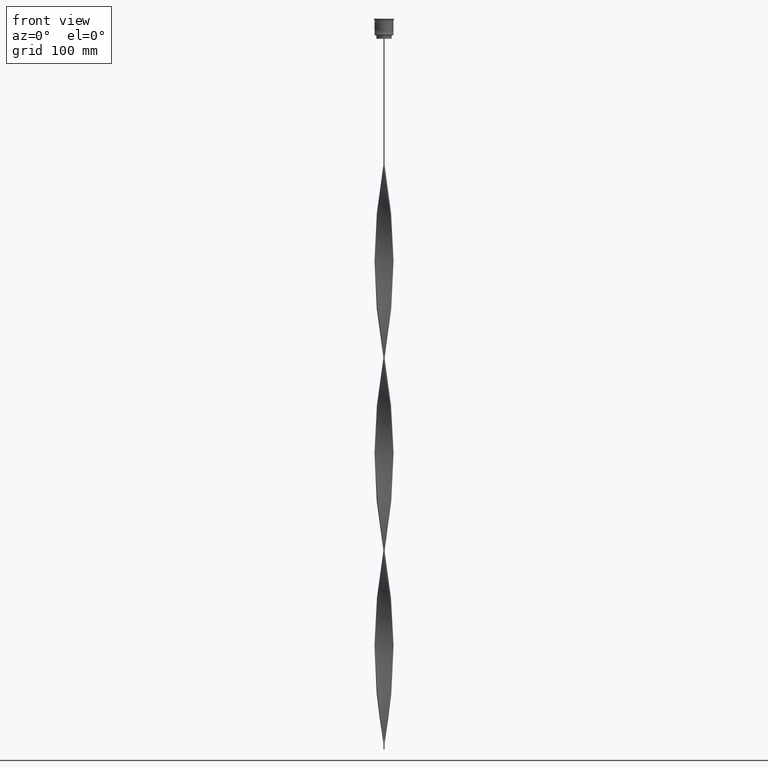
[diagram: clean part render]
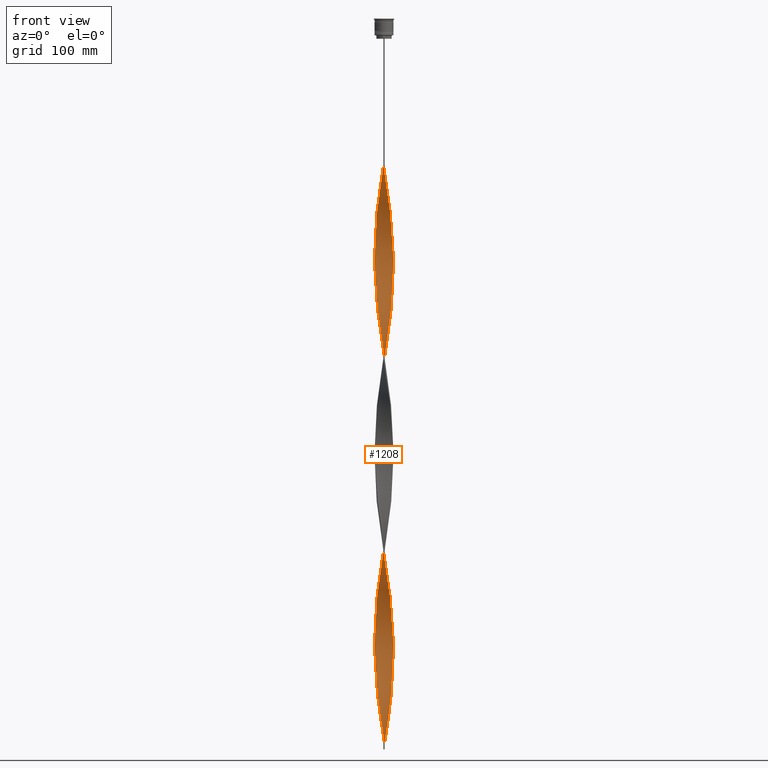
[diagram: same view with one face highlighted and labeled with its STEP entity id]
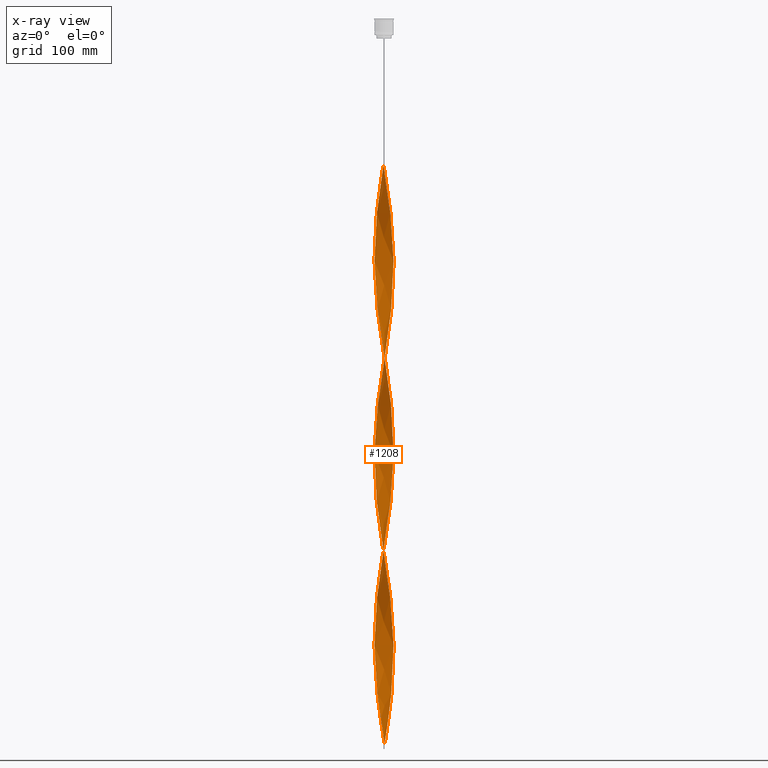
[diagram: x-ray of the same camera — body ghosted, the highlighted face saturated]
A machine part, front view. The second image highlights one B-rep face of the part: STEP entity #1208.
The next image is the same camera in x-ray: the body ghosted, the highlighted face saturated — about 0% of this face is hidden behind the body in this view.
In plain terms, the highlighted face is a freeform B-spline surface patch.
Its self-contained STEP definition (entity closure, byte-faithful):
#2 = CARTESIAN_POINT ( 'NONE',  ( 2.959661021242744994, -7.466238982642876998, -469.6800000000001205 ) ) ;
#15 = CARTESIAN_POINT ( 'NONE',  ( 2.953492255452158766, 7.468681369799081260, -268.8000000000000682 ) ) ;
#16 = CARTESIAN_POINT ( 'NONE',  ( 1.994129100314147696, 7.779959321094169766, -599.2799999999999727 ) ) ;
#33 = CARTESIAN_POINT ( 'NONE',  ( 2.953492255452158766, 7.468681369799081260, -592.8000000000000682 ) ) ;
#43 = CARTESIAN_POINT ( 'NONE',  ( 3.866277073390939290, 7.039617851728271702, -262.3199999999999932 ) ) ;
#44 = CARTESIAN_POINT ( 'NONE',  ( 2.473810677883154785, 7.624320345446625069, -596.0399999999999636 ) ) ;
#51 = CARTESIAN_POINT ( 'NONE',  ( -7.764607348536642917, -1.990194142050142334, -213.7200000000000273 ) ) ;
#55 = CARTESIAN_POINT ( 'NONE',  ( 5.845393947331972484, -5.484648539377413812, -492.3600000000000136 ) ) ;
#64 = CARTESIAN_POINT ( 'NONE',  ( -0.003317338029198242319, 8.031457333626830675, -288.2400000000001228 ) ) ;
#65 = CARTESIAN_POINT ( 'NONE',  ( 5.845393947331965379, 5.484648539377412035, -401.6399999999999864 ) ) ;
#71 = CARTESIAN_POINT ( 'NONE',  ( -0.5066085178571934078, -7.999584227297972916, -278.5199999999999818 ) ) ;
#76 = CARTESIAN_POINT ( 'NONE',  ( 5.495492638774149619, 5.856951302834855433, -573.3600000000001273 ) ) ;
#86 = CARTESIAN_POINT ( 'NONE',  ( 7.762960627548705084, 1.996607696852005009, -220.2000000000000171 ) ) ;
#87 = CARTESIAN_POINT ( 'NONE',  ( 2.959661021242737888, 7.466238982642869892, -424.3200000000000500 ) ) ;
#93 = CARTESIAN_POINT ( 'NONE',  ( 6.779406190655039133, 4.306270963224203108, -236.4000000000000341 ) ) ;
#95 = CARTESIAN_POINT ( 'NONE',  ( -7.025726773945617509, -3.858647858753589510, -226.6800000000000068 ) ) ;
#103 = CARTESIAN_POINT ( 'NONE',  ( 1.003317338029196426, 7.968542666373180872, -605.7600000000001046 ) ) ;
#114 = CARTESIAN_POINT ( 'NONE',  ( 7.889819750753897409, -1.501686454361715439, -197.5200000000000387 ) ) ;
#115 = CARTESIAN_POINT ( 'NONE',  ( -2.000555335823850367, -7.778309344253826474, -268.8000000000001251 ) ) ;
#121 = CARTESIAN_POINT ( 'NONE',  ( -0.003317338029198241885, 8.031457333626828898, -288.2400000000001796 ) ) ;
#123 = CARTESIAN_POINT ( 'NONE',  ( -5.495492638774146954, 5.856951302834847439, -158.6400000000000148 ) ) ;
#124 = ORIENTED_EDGE ( 'NONE', *, *, #525, .T. ) ;
#136 = CARTESIAN_POINT ( 'NONE',  ( -3.415876052791793072, 7.251330277401769386, -310.9199999999999591 ) ) ;
#137 = CARTESIAN_POINT ( 'NONE',  ( 7.265667412356200394, -3.422629830937728102, -340.0800000000000978 ) ) ;
#142 = CARTESIAN_POINT ( 'NONE',  ( 5.495492638774148730, 5.856951302834855433, -249.3600000000000136 ) ) ;
#144 = CARTESIAN_POINT ( 'NONE',  ( -2.473810677883152565, 7.624320345446617964, -135.9600000000000080 ) ) ;
#158 = CARTESIAN_POINT ( 'NONE',  ( -4.723455957963788698, 6.495635590130974357, -320.6400000000001000 ) ) ;
#159 = CARTESIAN_POINT ( 'NONE',  ( 4.718088392280368915, -6.499535354871832205, -314.1599999999999682 ) ) ;
#164 = CARTESIAN_POINT ( 'NONE',  ( 8.015817384569144721, -0.5009885865355698797, -204.0000000000000284 ) ) ;
#165 = CARTESIAN_POINT ( 'NONE',  ( -1.498723219171672616, 7.874250993733667769, -453.4800000000000750 ) ) ;
#181 = CARTESIAN_POINT ( 'NONE',  ( -5.840861161140214364, -5.489475466406953608, -408.1200000000000614 ) ) ;
#183 = CARTESIAN_POINT ( 'NONE',  ( -1.505227516754522377, -7.873010232611473036, -596.0399999999999636 ) ) ;
#188 = CARTESIAN_POINT ( 'NONE',  ( 7.025726773945623727, -3.858647858753592175, -505.3199999999999932 ) ) ;
#189 = CARTESIAN_POINT ( 'NONE',  ( 6.486710006526618777, 4.708778322582979570, -395.1600000000000250 ) ) ;
#201 = CARTESIAN_POINT ( 'NONE',  ( -3.409884664421547917, 7.254149610763668043, -466.4399999999999977 ) ) ;
#205 = CARTESIAN_POINT ( 'NONE',  ( -3.866277073390936625, -7.039617851728271702, -424.3200000000000500 ) ) ;
#215 = CARTESIAN_POINT ( 'NONE',  ( -4.723455957963780705, -6.495635590130970805, -573.3600000000000136 ) ) ;
#220 = CARTESIAN_POINT ( 'NONE',  ( 1.009899697685192832, -7.967711120969127592, -456.7200000000000841 ) ) ;
#221 = CARTESIAN_POINT ( 'NONE',  ( 3.409884664421550582, -7.254149610763668043, -304.4400000000000546 ) ) ;
#237 = CARTESIAN_POINT ( 'NONE',  ( -2.480108178533294794, -7.622274163448348183, -589.5600000000000591 ) ) ;
#246 = CARTESIAN_POINT ( 'NONE',  ( -5.500329109473828026, 5.852409554540304981, -327.1200000000001182 ) ) ;
#247 = CARTESIAN_POINT ( 'NONE',  ( 2.480108178533295682, 7.622274163448348183, -427.5600000000000023 ) ) ;
#259 = CARTESIAN_POINT ( 'NONE',  ( -7.889819750753890304, -1.501686454361715661, -534.4800000000000182 ) ) ;
#266 = CARTESIAN_POINT ( 'NONE',  ( 4.297773521152313592, -6.766028581145818954, -479.4000000000000341 ) ) ;
#268 = CARTESIAN_POINT ( 'NONE',  ( -7.952818567661513960, -1.001337520448642771, -531.2400000000000091 ) ) ;
#286 = CARTESIAN_POINT ( 'NONE',  ( 2.953492255452158766, 7.468681369799082148, -592.8000000000001819 ) ) ;
#288 = CARTESIAN_POINT ( 'NONE',  ( -7.265667412356201282, 3.422629830937727213, -502.0800000000000978 ) ) ;
#311 = CARTESIAN_POINT ( 'NONE',  ( -7.764607348536642917, -1.990194142050142334, -213.7200000000000273 ) ) ;
#329 = CARTESIAN_POINT ( 'NONE',  ( -7.888576536432217345, 1.508203612066590482, -191.0400000000000205 ) ) ;
#341 = CARTESIAN_POINT ( 'NONE',  ( 1.498723219171672172, 7.874250993733674875, -602.5200000000000955 ) ) ;
#352 = CARTESIAN_POINT ( 'NONE',  ( 2.000555335823854808, -7.778309344253831803, -139.1999999999999886 ) ) ;
#353 = CARTESIAN_POINT ( 'NONE',  ( 7.889819750753897409, -1.501686454361715661, -521.5200000000002092 ) ) ;
#364 = CARTESIAN_POINT ( 'NONE',  ( 7.453943633173757632, -2.947664213147156875, -511.8000000000000114 ) ) ;
#376 = CARTESIAN_POINT ( 'NONE',  ( 8.015609087190831872, 0.003310792020371779686, -531.2400000000000091 ) ) ;
#387 = CARTESIAN_POINT ( 'NONE',  ( -0.003317338029196073915, -8.031457333626823569, -281.7599999999999909 ) ) ;
#394 = CARTESIAN_POINT ( 'NONE',  ( 8.015817384569142945, -0.5009885865355698797, -528.0000000000000000 ) ) ;
#402 = CARTESIAN_POINT ( 'NONE',  ( 0.4999999999999972800, 8.000000000000003553, -285.0000000000000568 ) ) ;
#403 = CARTESIAN_POINT ( 'NONE',  ( 2.473810677883154341, -7.624320345446617964, -297.9599999999999795 ) ) ;
#408 = FACE_OUTER_BOUND ( 'NONE', #1911, .T. ) ;
#410 = CARTESIAN_POINT ( 'NONE',  ( -6.190458785190113389, -5.116887524214520866, -236.4000000000000341 ) ) ;
#415 = CARTESIAN_POINT ( 'NONE',  ( 7.888576536432224451, 1.508203612066593147, -540.9600000000001501 ) ) ;
#425 = CARTESIAN_POINT ( 'NONE',  ( 8.015400789812517246, -0.5076101705763091942, -359.5200000000000955 ) ) ;
#430 = CARTESIAN_POINT ( 'NONE',  ( 7.952818567661520177, -1.001337520448642326, -200.7599999999999909 ) ) ;
#432 = CARTESIAN_POINT ( 'NONE',  ( -7.889819750753890304, -1.501686454361715439, -210.4800000000000182 ) ) ;
#438 = CARTESIAN_POINT ( 'NONE',  ( 7.639394946319403523, -2.478701829738568563, -515.0400000000001910 ) ) ;
#447 = CARTESIAN_POINT ( 'NONE',  ( 1.505227516754519712, 7.873010232611473036, -434.0400000000000205 ) ) ;
#453 = CARTESIAN_POINT ( 'NONE',  ( 4.723455957963786922, -6.495635590130975245, -158.6399999999999864 ) ) ;
#454 = CARTESIAN_POINT ( 'NONE',  ( -3.415876052791788187, -7.251330277401763169, -259.0799999999999841 ) ) ;
#471 = CARTESIAN_POINT ( 'NONE',  ( -7.764607348536651799, 1.990194142050141890, -356.2800000000000296 ) ) ;
#472 = CARTESIAN_POINT ( 'NONE',  ( -4.723455957963780705, -6.495635590130970805, -249.3600000000000136 ) ) ;
#474 = CARTESIAN_POINT ( 'NONE',  ( -1.505227516754522377, -7.873010232611473036, -596.0399999999999636 ) ) ;
#477 = CARTESIAN_POINT ( 'NONE',  ( 4.297773521152313592, -6.766028581145818954, -155.4000000000000057 ) ) ;
#478 = CARTESIAN_POINT ( 'NONE',  ( -7.637344718665181276, 2.485011781637411765, -184.5600000000000307 ) ) ;
#491 = CARTESIAN_POINT ( 'NONE',  ( -5.500329109473827138, 5.852409554540304981, -327.1200000000000614 ) ) ;
#492 = CARTESIAN_POINT ( 'NONE',  ( 7.889819750753890304, 1.501686454361714329, -372.4800000000000750 ) ) ;
#498 = CARTESIAN_POINT ( 'NONE',  ( 6.482817937080661785, 4.714135296601625669, -239.6400000000000148 ) ) ;
#499 = CARTESIAN_POINT ( 'NONE',  ( 6.779406190655033804, -4.306270963224200443, -333.6000000000000227 ) ) ;
#511 = CARTESIAN_POINT ( 'NONE',  ( -7.451506065510695720, -2.953820806287572598, -388.6800000000000068 ) ) ;
#513 = CARTESIAN_POINT ( 'NONE',  ( -5.500329109473821809, -5.852409554540300540, -566.8799999999999955 ) ) ;
#519 = CARTESIAN_POINT ( 'NONE',  ( 6.190458785190118718, -5.116887524214525307, -495.6000000000000227 ) ) ;
#525 = EDGE_CURVE ( 'NONE', #3612, #2961, #1894, .T. ) ;
#535 = CARTESIAN_POINT ( 'NONE',  ( -6.186229683506279109, 5.121999629979041124, -489.1200000000001182 ) ) ;
#539 = CARTESIAN_POINT ( 'NONE',  ( -7.762960627548706860, -1.996607696852001901, -382.2000000000000455 ) ) ;
#540 = CARTESIAN_POINT ( 'NONE',  ( 6.482817937080657344, -4.714135296601619451, -330.3600000000000136 ) ) ;
#544 = CARTESIAN_POINT ( 'NONE',  ( 0.5000000000000007772, -2.666666666666663410, -609.0000000000000000 ) ) ;
#556 = CARTESIAN_POINT ( 'NONE',  ( -7.951988663122374845, -1.007906891321457499, -375.7199999999999704 ) ) ;
#557 = CARTESIAN_POINT ( 'NONE',  ( 3.415876052791789075, 7.251330277401763169, -421.0799999999999841 ) ) ;
#569 = CARTESIAN_POINT ( 'NONE',  ( -3.872091084340837153, -7.036421572160659110, -579.8400000000001455 ) ) ;
#577 = CARTESIAN_POINT ( 'NONE',  ( -3.409884664421550138, -7.254149610763675149, -427.5600000000000023 ) ) ;
#578 = CARTESIAN_POINT ( 'NONE',  ( 6.186229683506279997, -5.121999629979041124, -327.1200000000000614 ) ) ;
#595 = CARTESIAN_POINT ( 'NONE',  ( -8.015400789812517246, 0.5076101705763133021, -521.5200000000002092 ) ) ;
#603 = CARTESIAN_POINT ( 'NONE',  ( -1.003317338029197536, -7.968542666373180872, -443.7599999999999909 ) ) ;
#604 = CARTESIAN_POINT ( 'NONE',  ( -8.015609087190826543, 0.003310792020370478643, -524.7599999999999909 ) ) ;
#624 = CARTESIAN_POINT ( 'NONE',  ( 5.840861161140217028, 5.489475466406951831, -570.1200000000000045 ) ) ;
#627 = CARTESIAN_POINT ( 'NONE',  ( -0.4999999999999998890, -8.000000000000003553, -123.0000000000000000 ) ) ;
#645 = CARTESIAN_POINT ( 'NONE',  ( -6.779406190655033804, 4.306270963224198667, -171.6000000000000512 ) ) ;
#647 = CARTESIAN_POINT ( 'NONE',  ( -5.840861161140213476, 5.489475466406945614, -485.8800000000000523 ) ) ;
#670 = CARTESIAN_POINT ( 'NONE',  ( -3.866277073390937957, 7.039617851728262821, -145.6800000000000352 ) ) ;
#683 = CARTESIAN_POINT ( 'NONE',  ( 7.025726773945623727, -3.858647858753592175, -505.3199999999999932 ) ) ;
#692 = CARTESIAN_POINT ( 'NONE',  ( 0.5066085178571956282, -7.999584227297980021, -129.4800000000000182 ) ) ;
#693 = CARTESIAN_POINT ( 'NONE',  ( 4.718088392280371579, 6.499535354871838422, -579.8400000000001455 ) ) ;
#704 = CARTESIAN_POINT ( 'NONE',  ( 1.009899697685192832, -7.967711120969127592, -456.7200000000000841 ) ) ;
#715 = CARTESIAN_POINT ( 'NONE',  ( 7.265667412356205723, 3.422629830937732986, -229.9200000000000443 ) ) ;
#716 = CARTESIAN_POINT ( 'NONE',  ( -5.840861161140213476, 5.489475466406945614, -161.8799999999999955 ) ) ;
#723 = CARTESIAN_POINT ( 'NONE',  ( -1.505227516754522377, -7.873010232611473036, -272.0400000000000205 ) ) ;
#727 = CARTESIAN_POINT ( 'NONE',  ( 7.764607348536651799, -1.990194142050141002, -518.2800000000000864 ) ) ;
#739 = CARTESIAN_POINT ( 'NONE',  ( 1.003317338029196426, 7.968542666373180872, -281.7599999999999909 ) ) ;
#740 = CARTESIAN_POINT ( 'NONE',  ( -3.415876052791788187, -7.251330277401763169, -259.0799999999999841 ) ) ;
#750 = CARTESIAN_POINT ( 'NONE',  ( -8.015817384569135839, -0.5009885865355724333, -204.0000000000000284 ) ) ;
#755 = CARTESIAN_POINT ( 'NONE',  ( 3.409884664421549250, 7.254149610763675149, -589.5600000000000591 ) ) ;
#763 = CARTESIAN_POINT ( 'NONE',  ( 6.486710006526624994, -4.708778322582981346, -174.8400000000000034 ) ) ;
#765 = CARTESIAN_POINT ( 'NONE',  ( 7.952818567661513960, 1.001337520448645213, -369.2400000000000091 ) ) ;
#769 = CARTESIAN_POINT ( 'NONE',  ( 3.409884664421549250, 7.254149610763675149, -265.5600000000000023 ) ) ;
#772 = CARTESIAN_POINT ( 'NONE',  ( -7.265667412356201282, 3.422629830937727213, -178.0800000000000125 ) ) ;
#777 = CARTESIAN_POINT ( 'NONE',  ( 3.866277073390939290, 7.039617851728271702, -586.3200000000000500 ) ) ;
#784 = CARTESIAN_POINT ( 'NONE',  ( 7.952818567661520177, -1.001337520448642326, -200.7599999999999909 ) ) ;
#785 = CARTESIAN_POINT ( 'NONE',  ( 5.106790515527258378, -6.178243328853338490, -317.4000000000000341 ) ) ;
#790 = CARTESIAN_POINT ( 'NONE',  ( 3.415876052791792628, -7.251330277401769386, -148.9199999999999875 ) ) ;
#791 = CARTESIAN_POINT ( 'NONE',  ( -4.718088392280368026, 6.499535354871833093, -152.1599999999999966 ) ) ;
#804 = CARTESIAN_POINT ( 'NONE',  ( -8.015817384569142945, 0.5009885865355726553, -366.0000000000000000 ) ) ;
#805 = CARTESIAN_POINT ( 'NONE',  ( 0.5066085178571909653, 7.999584227297972916, -440.5200000000000387 ) ) ;
#808 = CARTESIAN_POINT ( 'NONE',  ( -3.415876052791788187, -7.251330277401763169, -583.0800000000000409 ) ) ;
#814 = CARTESIAN_POINT ( 'NONE',  ( -2.000555335823857028, 7.778309344253831803, -301.2000000000000455 ) ) ;
#815 = CARTESIAN_POINT ( 'NONE',  ( -2.959661021242740553, -7.466238982642869892, -262.3199999999999932 ) ) ;
#830 = CARTESIAN_POINT ( 'NONE',  ( -5.111892533718807030, 6.174022572335639225, -323.8799999999999955 ) ) ;
#831 = CARTESIAN_POINT ( 'NONE',  ( 7.022536801505617099, -3.864450397080961608, -336.8400000000000318 ) ) ;
#833 = CARTESIAN_POINT ( 'NONE',  ( -1.009899697685191278, -7.967711120969122263, -599.2800000000000864 ) ) ;
#836 = CARTESIAN_POINT ( 'NONE',  ( 7.762960627548705084, 1.996607696852005009, -220.2000000000000171 ) ) ;
#837 = CARTESIAN_POINT ( 'NONE',  ( 7.268492320028107301, 3.416626596555745632, -385.4399999999999977 ) ) ;
#843 = CARTESIAN_POINT ( 'NONE',  ( 0.4999999999999972800, 8.000000000000003553, -609.0000000000000000 ) ) ;
#851 = CARTESIAN_POINT ( 'NONE',  ( -4.292182732835656545, -6.769576603300054174, -421.0799999999999841 ) ) ;
#852 = CARTESIAN_POINT ( 'NONE',  ( -6.486710006526618777, -4.708778322582980458, -557.1600000000000819 ) ) ;
#857 = CARTESIAN_POINT ( 'NONE',  ( 2.480108178533299679, -7.622274163448352624, -142.4399999999999977 ) ) ;
#858 = CARTESIAN_POINT ( 'NONE',  ( -3.866277073390938401, 7.039617851728262821, -469.6800000000001205 ) ) ;
#869 = CARTESIAN_POINT ( 'NONE',  ( -2.000555335823850367, -7.778309344253826474, -592.8000000000001819 ) ) ;
#874 = CARTESIAN_POINT ( 'NONE',  ( 0.003317338029198458726, -8.031457333626828898, -450.2400000000000659 ) ) ;
#876 = CARTESIAN_POINT ( 'NONE',  ( 7.265667412356200394, -3.422629830937728102, -340.0800000000000978 ) ) ;
#893 = CARTESIAN_POINT ( 'NONE',  ( -1.003317338029197980, 7.968542666373174654, -450.2400000000000659 ) ) ;
#898 = CARTESIAN_POINT ( 'NONE',  ( -5.845393947331973372, 5.484648539377412924, -330.3600000000000136 ) ) ;
#899 = CARTESIAN_POINT ( 'NONE',  ( 8.015400789812517246, -0.5076101705763091942, -359.5200000000000387 ) ) ;
#910 = CARTESIAN_POINT ( 'NONE',  ( -8.015609087190826543, 0.003310792020370478643, -524.7599999999999909 ) ) ;
#916 = CARTESIAN_POINT ( 'NONE',  ( -4.297773521152315368, 6.766028581145817178, -317.4000000000000341 ) ) ;
#930 = CARTESIAN_POINT ( 'NONE',  ( 0.003317338029197050130, 8.031457333626821793, -443.7599999999999909 ) ) ;
#935 = CARTESIAN_POINT ( 'NONE',  ( 2.000555335823854364, -7.778309344253831803, -463.2000000000000455 ) ) ;
#937 = CARTESIAN_POINT ( 'NONE',  ( -4.297773521152310039, -6.766028581145813625, -576.6000000000000227 ) ) ;
#964 = CARTESIAN_POINT ( 'NONE',  ( 4.723455957963786922, -6.495635590130975245, -482.6400000000001000 ) ) ;
#966 = CARTESIAN_POINT ( 'NONE',  ( -5.111892533718799925, -6.174022572335634784, -570.1200000000000045 ) ) ;
#967 = LINE ( 'NONE', #627, #3125 ) ;
#983 = CARTESIAN_POINT ( 'NONE',  ( 3.866277073390938845, 7.039617851728270814, -586.3200000000000500 ) ) ;
#985 = CARTESIAN_POINT ( 'NONE',  ( -7.451506065510689503, 2.953820806287569933, -505.3199999999999932 ) ) ;
#1003 = CARTESIAN_POINT ( 'NONE',  ( 7.762960627548705084, 1.996607696852005009, -544.2000000000000455 ) ) ;
#1013 = CARTESIAN_POINT ( 'NONE',  ( 0.5066085178571956282, -7.999584227297980021, -453.4800000000000750 ) ) ;
#1027 = CARTESIAN_POINT ( 'NONE',  ( 4.723455957963786922, -6.495635590130975245, -158.6400000000000148 ) ) ;
#1028 = CARTESIAN_POINT ( 'NONE',  ( -7.265667412356201282, 3.422629830937727213, -178.0800000000000125 ) ) ;
#1042 = CARTESIAN_POINT ( 'NONE',  ( -2.953492255452155657, -7.468681369799083036, -430.8000000000000682 ) ) ;
#1053 = CARTESIAN_POINT ( 'NONE',  ( 1.505227516754523709, -7.873010232611480141, -135.9600000000000080 ) ) ;
#1054 = CARTESIAN_POINT ( 'NONE',  ( -8.015817384569137616, -0.5009885865355725443, -204.0000000000000284 ) ) ;
#1066 = CARTESIAN_POINT ( 'NONE',  ( 5.111892533718807030, -6.174022572335639225, -485.8800000000000523 ) ) ;
#1076 = CARTESIAN_POINT ( 'NONE',  ( 1.498723219171672172, 7.874250993733674875, -278.5199999999999818 ) ) ;
#1077 = CARTESIAN_POINT ( 'NONE',  ( 7.764607348536642029, 1.990194142050144555, -375.7199999999999704 ) ) ;
#1084 = CARTESIAN_POINT ( 'NONE',  ( -5.840861161140213476, 5.489475466406945614, -161.8799999999999955 ) ) ;
#1089 = CARTESIAN_POINT ( 'NONE',  ( 2.480108178533299679, -7.622274163448352624, -466.4399999999999977 ) ) ;
#1101 = CARTESIAN_POINT ( 'NONE',  ( 6.779406190655033804, -4.306270963224200443, -333.6000000000000227 ) ) ;
#1108 = CARTESIAN_POINT ( 'NONE',  ( 5.500329109473828026, -5.852409554540304981, -165.1200000000000330 ) ) ;
#1110 = CARTESIAN_POINT ( 'NONE',  ( -3.866277073390938401, 7.039617851728262821, -145.6800000000000352 ) ) ;
#1115 = CARTESIAN_POINT ( 'NONE',  ( 6.482817937080661785, 4.714135296601625669, -563.6399999999999864 ) ) ;
#1123 = CARTESIAN_POINT ( 'NONE',  ( 5.495492638774149619, 5.856951302834855433, -249.3599999999999852 ) ) ;
#1124 = CARTESIAN_POINT ( 'NONE',  ( -5.845393947331967155, -5.484648539377411147, -239.6400000000000148 ) ) ;
#1128 = CARTESIAN_POINT ( 'NONE',  ( 0.5066085178571956282, -7.999584227297980021, -129.4800000000000182 ) ) ;
#1129 = CARTESIAN_POINT ( 'NONE',  ( -8.015400789812517246, 0.5076101705763133021, -197.5200000000000387 ) ) ;
#1142 = CARTESIAN_POINT ( 'NONE',  ( -7.952818567661520177, 1.001337520448641660, -362.7600000000000477 ) ) ;
#1143 = CARTESIAN_POINT ( 'NONE',  ( 1.003317338029197980, -7.968542666373174654, -288.2400000000001796 ) ) ;
#1147 = CARTESIAN_POINT ( 'NONE',  ( 7.764607348536651799, -1.990194142050141002, -194.2800000000000011 ) ) ;
#1148 = CARTESIAN_POINT ( 'NONE',  ( -5.845393947331967155, -5.484648539377411147, -239.6400000000000148 ) ) ;
#1161 = CARTESIAN_POINT ( 'NONE',  ( -7.951988663122374845, -1.007906891321457499, -375.7199999999999704 ) ) ;
#1162 = CARTESIAN_POINT ( 'NONE',  ( 5.495492638774147842, -5.856951302834846551, -320.6400000000001000 ) ) ;
#1170 = CARTESIAN_POINT ( 'NONE',  ( 1.009899697685192832, -7.967711120969127592, -132.7199999999999989 ) ) ;
#1171 = CARTESIAN_POINT ( 'NONE',  ( -7.762960627548698866, 1.996607696852001457, -187.8000000000000114 ) ) ;
#1189 = CARTESIAN_POINT ( 'NONE',  ( -8.015400789812524351, -0.5076101705763139682, -372.4800000000000750 ) ) ;
#1191 = CARTESIAN_POINT ( 'NONE',  ( -6.482817937080656456, 4.714135296601620340, -492.3600000000000136 ) ) ;
#1196 = CARTESIAN_POINT ( 'NONE',  ( 7.889819750753890304, 1.501686454361714107, -372.4800000000000750 ) ) ;
#1208 = ADVANCED_FACE ( 'NONE', ( #408 ), #3729, .T. ) ;
#1209 = CARTESIAN_POINT ( 'NONE',  ( -5.845393947331973372, 5.484648539377412924, -330.3600000000000136 ) ) ;
#1210 = CARTESIAN_POINT ( 'NONE',  ( -4.718088392280368026, 6.499535354871833093, -476.1600000000000250 ) ) ;
#1215 = CARTESIAN_POINT ( 'NONE',  ( -6.782961227863133935, 4.300669120951440938, -340.0800000000000978 ) ) ;
#1216 = CARTESIAN_POINT ( 'NONE',  ( -5.106790515527257490, 6.178243328853340266, -479.4000000000000341 ) ) ;
#1226 = CARTESIAN_POINT ( 'NONE',  ( -7.265667412356201282, 3.422629830937727213, -502.0800000000000409 ) ) ;
#1232 = CARTESIAN_POINT ( 'NONE',  ( 6.486710006526624994, -4.708778322582981346, -498.8400000000000318 ) ) ;
#1234 = CARTESIAN_POINT ( 'NONE',  ( 7.762960627548698866, -1.996607696852002345, -349.8000000000000114 ) ) ;
#1248 = CARTESIAN_POINT ( 'NONE',  ( -6.779406190655033804, 4.306270963224198667, -495.6000000000000227 ) ) ;
#1255 = CARTESIAN_POINT ( 'NONE',  ( 2.480108178533299679, -7.622274163448352624, -466.4399999999999977 ) ) ;
#1267 = CARTESIAN_POINT ( 'NONE',  ( -5.840861161140213476, 5.489475466406945614, -485.8800000000000523 ) ) ;
#1274 = CARTESIAN_POINT ( 'NONE',  ( -7.451506065510695720, -2.953820806287572598, -388.6800000000000068 ) ) ;
#1276 = CARTESIAN_POINT ( 'NONE',  ( 7.637344718665181276, -2.485011781637411321, -346.5600000000000023 ) ) ;
#1296 = CARTESIAN_POINT ( 'NONE',  ( -1.498723219171669507, -7.874250993733674875, -440.5200000000000387 ) ) ;
#1322 = CARTESIAN_POINT ( 'NONE',  ( -8.015609087190826543, 0.003310792020370478643, -200.7599999999999909 ) ) ;
#1324 = CARTESIAN_POINT ( 'NONE',  ( -7.762960627548698866, 1.996607696852001457, -511.8000000000000114 ) ) ;
#1343 = CARTESIAN_POINT ( 'NONE',  ( -2.473810677883152565, 7.624320345446617964, -135.9600000000000080 ) ) ;
#1364 = CARTESIAN_POINT ( 'NONE',  ( -6.782961227863126830, -4.300669120951438273, -229.9200000000000443 ) ) ;
#1379 = CARTESIAN_POINT ( 'NONE',  ( -0.4999999999999998890, -8.000000000000003553, -447.0000000000000000 ) ) ;
#1394 = CARTESIAN_POINT ( 'NONE',  ( -0.4999999999999998890, -8.000000000000003553, -123.0000000000000000 ) ) ;
#1396 = CARTESIAN_POINT ( 'NONE',  ( -1.498723219171672616, 7.874250993733667769, -129.4800000000000182 ) ) ;
#1410 = CARTESIAN_POINT ( 'NONE',  ( 6.486710006526624994, -4.708778322582981346, -498.8400000000000318 ) ) ;
#1418 = CARTESIAN_POINT ( 'NONE',  ( 2.473810677883154785, 7.624320345446625069, -272.0400000000000205 ) ) ;
#1419 = CARTESIAN_POINT ( 'NONE',  ( -7.889819750753890304, -1.501686454361715661, -210.4800000000000182 ) ) ;
#1427 = CARTESIAN_POINT ( 'NONE',  ( -7.639394946319396418, -2.478701829738567675, -216.9600000000000080 ) ) ;
#1431 = CARTESIAN_POINT ( 'NONE',  ( 1.505227516754523709, -7.873010232611480141, -459.9600000000000364 ) ) ;
#1441 = CARTESIAN_POINT ( 'NONE',  ( 7.268492320028114406, -3.416626596555745188, -184.5600000000000307 ) ) ;
#1442 = CARTESIAN_POINT ( 'NONE',  ( 4.723455957963781593, 6.495635590130970805, -411.3600000000000705 ) ) ;
#1447 = CARTESIAN_POINT ( 'NONE',  ( 0.003317338029198458726, -8.031457333626828898, -126.2400000000000233 ) ) ;
#1449 = CARTESIAN_POINT ( 'NONE',  ( 1.498723219171672616, -7.874250993733667769, -291.4800000000000182 ) ) ;
#1454 = CARTESIAN_POINT ( 'NONE',  ( 7.889819750753897409, -1.501686454361715439, -521.5200000000000955 ) ) ;
#1466 = CARTESIAN_POINT ( 'NONE',  ( 6.779406190655039133, 4.306270963224203108, -236.4000000000000341 ) ) ;
#1467 = CARTESIAN_POINT ( 'NONE',  ( -0.003317338029196073481, -8.031457333626821793, -281.7600000000000477 ) ) ;
#1473 = CARTESIAN_POINT ( 'NONE',  ( 3.872091084340840705, -7.036421572160664439, -152.1599999999999966 ) ) ;
#1475 = CARTESIAN_POINT ( 'NONE',  ( -6.782961227863126830, -4.300669120951438273, -229.9200000000000443 ) ) ;
#1490 = CARTESIAN_POINT ( 'NONE',  ( 1.009899697685192832, -7.967711120969127592, -132.7199999999999989 ) ) ;
#1491 = CARTESIAN_POINT ( 'NONE',  ( 5.111892533718798148, 6.174022572335636561, -408.1200000000000614 ) ) ;
#1496 = CARTESIAN_POINT ( 'NONE',  ( 7.888576536432224451, 1.508203612066593147, -216.9600000000000080 ) ) ;
#1497 = CARTESIAN_POINT ( 'NONE',  ( -7.022536801505616211, 3.864450397080963384, -174.8400000000000034 ) ) ;
#1509 = CARTESIAN_POINT ( 'NONE',  ( -6.482817937080660009, -4.714135296601627445, -401.6399999999999864 ) ) ;
#1510 = CARTESIAN_POINT ( 'NONE',  ( 7.451506065510691279, -2.953820806287565937, -343.3199999999999932 ) ) ;
#1515 = CARTESIAN_POINT ( 'NONE',  ( -0.4999999999999998890, -8.000000000000003553, -123.0000000000000000 ) ) ;
#1517 = CARTESIAN_POINT ( 'NONE',  ( -6.482817937080656456, 4.714135296601620340, -168.3600000000000136 ) ) ;
#1530 = CARTESIAN_POINT ( 'NONE',  ( -7.025726773945625503, 3.858647858753588622, -343.3199999999999932 ) ) ;
#1531 = CARTESIAN_POINT ( 'NONE',  ( -1.009899697685191056, -7.967711120969122263, -275.2799999999999727 ) ) ;
#1541 = CARTESIAN_POINT ( 'NONE',  ( 7.265667412356205723, 3.422629830937732986, -229.9200000000000443 ) ) ;
#1542 = CARTESIAN_POINT ( 'NONE',  ( 5.495492638774148730, -5.856951302834846551, -320.6400000000001000 ) ) ;
#1558 = CARTESIAN_POINT ( 'NONE',  ( -5.106790515527257490, -6.178243328853349148, -414.6000000000000227 ) ) ;
#1559 = CARTESIAN_POINT ( 'NONE',  ( -2.953492255452158766, 7.468681369799075043, -463.2000000000000455 ) ) ;
#1563 = CARTESIAN_POINT ( 'NONE',  ( -5.495492638774149619, -5.856951302834855433, -411.3600000000000705 ) ) ;
#1568 = CARTESIAN_POINT ( 'NONE',  ( 0.4999999999999972800, 8.000000000000003553, -609.0000000000000000 ) ) ;
#1577 = CARTESIAN_POINT ( 'NONE',  ( -7.951988663122369516, 1.007906891321451281, -518.2800000000000864 ) ) ;
#1579 = CARTESIAN_POINT ( 'NONE',  ( -2.000555335823850367, -7.778309344253826474, -592.8000000000000682 ) ) ;
#1581 = CARTESIAN_POINT ( 'NONE',  ( -0.4999999999999998890, -8.000000000000003553, -447.0000000000000000 ) ) ;
#1582 = CARTESIAN_POINT ( 'NONE',  ( 3.866277073390937957, -7.039617851728263709, -307.6800000000000637 ) ) ;
#1596 = CARTESIAN_POINT ( 'NONE',  ( 5.500329109473828026, -5.852409554540304981, -489.1200000000001182 ) ) ;
#1598 = CARTESIAN_POINT ( 'NONE',  ( -1.994129100314147029, 7.779959321094164437, -456.7200000000000841 ) ) ;
#1613 = VERTEX_POINT ( 'NONE', #843 ) ;
#1618 = CARTESIAN_POINT ( 'NONE',  ( -7.025726773945617509, -3.858647858753589510, -550.6800000000000637 ) ) ;
#1624 = CARTESIAN_POINT ( 'NONE',  ( -7.889819750753897409, 1.501686454361711220, -359.5200000000000955 ) ) ;
#1625 = CARTESIAN_POINT ( 'NONE',  ( -0.4999999999999998890, 7.999999999999996447, -447.0000000000000000 ) ) ;
#1638 = CARTESIAN_POINT ( 'NONE',  ( -1.009899697685191056, -7.967711120969122263, -599.2799999999999727 ) ) ;
#1644 = CARTESIAN_POINT ( 'NONE',  ( -4.718088392280368915, -6.499535354871840198, -417.8400000000001455 ) ) ;
#1646 = CARTESIAN_POINT ( 'NONE',  ( -5.495492638774146954, 5.856951302834847439, -482.6400000000000432 ) ) ;
#1661 = CARTESIAN_POINT ( 'NONE',  ( 8.015817384569144721, -0.5009885865355698797, -528.0000000000000000 ) ) ;
#1663 = CARTESIAN_POINT ( 'NONE',  ( -7.268492320028109077, -3.416626596555743411, -547.4400000000001683 ) ) ;
#1691 = CARTESIAN_POINT ( 'NONE',  ( -7.268492320028109077, -3.416626596555743411, -223.4399999999999977 ) ) ;
#1711 = CARTESIAN_POINT ( 'NONE',  ( -0.4999999999999998890, -8.000000000000003553, -123.0000000000000000 ) ) ;
#1712 = CARTESIAN_POINT ( 'NONE',  ( -7.951988663122369516, 1.007906891321451281, -194.2800000000000011 ) ) ;
#1732 = CARTESIAN_POINT ( 'NONE',  ( 7.764607348536651799, -1.990194142050141002, -194.2800000000000011 ) ) ;
#1733 = CARTESIAN_POINT ( 'NONE',  ( -7.762960627548698866, 1.996607696852001457, -187.8000000000000114 ) ) ;
#1746 = CARTESIAN_POINT ( 'NONE',  ( 5.840861161140217028, 5.489475466406951831, -570.1200000000000045 ) ) ;
#1760 = CARTESIAN_POINT ( 'NONE',  ( 3.872091084340840705, -7.036421572160664439, -152.1599999999999966 ) ) ;
#1761 = CARTESIAN_POINT ( 'NONE',  ( 7.764607348536651799, -1.990194142050141002, -518.2800000000000864 ) ) ;
#1769 = CARTESIAN_POINT ( 'NONE',  ( -7.888576536432217345, 1.508203612066590704, -191.0400000000000205 ) ) ;
#1773 = CARTESIAN_POINT ( 'NONE',  ( 0.4999999999999972800, 8.000000000000003553, -609.0000000000000000 ) ) ;
#1784 = CARTESIAN_POINT ( 'NONE',  ( 7.025726773945618397, 3.858647858753588622, -388.6800000000000068 ) ) ;
#1789 = CARTESIAN_POINT ( 'NONE',  ( 7.022536801505621540, 3.864450397080969601, -233.1599999999999966 ) ) ;
#1791 = CARTESIAN_POINT ( 'NONE',  ( -4.723455957963780705, -6.495635590130970805, -249.3599999999999852 ) ) ;
#1795 = CARTESIAN_POINT ( 'NONE',  ( 7.022536801505621540, 3.864450397080969601, -557.1600000000000819 ) ) ;
#1805 = CARTESIAN_POINT ( 'NONE',  ( 0.003317338029198459159, -8.031457333626830675, -126.2400000000000233 ) ) ;
#1806 = CARTESIAN_POINT ( 'NONE',  ( -2.959661021242740553, -7.466238982642869004, -262.3199999999999932 ) ) ;
#1810 = CARTESIAN_POINT ( 'NONE',  ( 2.953492255452158766, 7.468681369799082148, -268.8000000000001251 ) ) ;
#1812 = CARTESIAN_POINT ( 'NONE',  ( -1.498723219171672616, 7.874250993733667769, -129.4800000000000182 ) ) ;
#1818 = CARTESIAN_POINT ( 'NONE',  ( 6.186229683506284438, 5.121999629979047342, -566.8799999999999955 ) ) ;
#1827 = CARTESIAN_POINT ( 'NONE',  ( 7.451506065510694832, 2.953820806287573930, -226.6800000000000068 ) ) ;
#1829 = CARTESIAN_POINT ( 'NONE',  ( 6.186229683506279109, -5.121999629979041124, -327.1200000000001182 ) ) ;
#1835 = CARTESIAN_POINT ( 'NONE',  ( 7.268492320028115294, -3.416626596555745188, -184.5600000000000307 ) ) ;
#1836 = CARTESIAN_POINT ( 'NONE',  ( 1.994129100314148362, -7.779959321094161773, -294.7199999999999704 ) ) ;
#1849 = CARTESIAN_POINT ( 'NONE',  ( -7.265667412356204835, -3.422629830937735207, -391.9200000000001296 ) ) ;
#1850 = CARTESIAN_POINT ( 'NONE',  ( -2.480108178533294794, -7.622274163448348183, -265.5600000000000023 ) ) ;
#1856 = CARTESIAN_POINT ( 'NONE',  ( -0.4999999999999998890, 7.999999999999996447, -123.0000000000000000 ) ) ;
#1868 = CARTESIAN_POINT ( 'NONE',  ( -0.5066085178571957393, 7.999584227297980021, -291.4800000000000182 ) ) ;
#1869 = CARTESIAN_POINT ( 'NONE',  ( 6.482817937080657344, -4.714135296601619451, -330.3600000000000136 ) ) ;
#1874 = CARTESIAN_POINT ( 'NONE',  ( 6.190458785190108060, 5.116887524214526195, -398.4000000000000909 ) ) ;
#1888 = CARTESIAN_POINT ( 'NONE',  ( -2.480108178533302343, 7.622274163448351736, -304.4400000000000546 ) ) ;
#1889 = CARTESIAN_POINT ( 'NONE',  ( -8.015817384569137616, -0.5009885865355725443, -528.0000000000000000 ) ) ;
#1894 =( BOUNDED_CURVE ( )  B_SPLINE_CURVE ( 2, ( #1856, #3838, #1812, #3145, #144, #2871, #2470, #1110, #3543, #791, #2129, #123, #1084, #3524, #1517, #2893, #1497, #772, #3902, #478, #1171, #1769, #2202, #1129, #2517, #750, #2153, #432, #51, #1427, #2822, #3505, #95, #1475, #4229, #410, #1148, #2851, #2562, #1791, #3880, #2175, #454, #815, #3568, #3165, #723, #3479, #71, #387, #2800, #4178, #1449, #1836, #4203, #2496, #221, #1582, #4380, #2601, #2954, #1542, #3343, #578, #540, #499, #4334, #876, #1918, #1276, #1234, #4298, #2246, #899, #2288, #3934, #3970, #1196, #4358, #3000, #3589, #837, #2582, #2304, #189, #1874, #3651, #2267, #3632, #3300, #3318, #3280, #557, #4317, #247, #1934, #3955, #3669, #3254, #3607, #1625, #2621, #165, #1598, #1956, #2977, #4008, #858, #1898, #2936, #1216, #1646, #647, #3364, #3715, #2354, #3735, #288, #985, #4429, #1324, #2004, #3692, #2708, #604, #2025, #268, #3385, #3044, #1982, #3021, #1663, #4080, #4057, #2683, #4403, #2659, #2374, #966, #4030, #937, #2240, #808, #2597, #2933, #1579, #474, #833, #3274, #2196, #2262 ),
 .UNSPECIFIED., .F., .T. ) 
 B_SPLINE_CURVE_WITH_KNOTS ( ( 3, 2, 2, 2, 2, 2, 2, 2, 2, 2, 2, 2, 2, 2, 2, 2, 2, 2, 2, 2, 2, 2, 2, 2, 2, 2, 2, 2, 2, 2, 2, 2, 2, 2, 2, 2, 2, 2, 2, 2, 2, 2, 2, 2, 2, 2, 2, 2, 2, 2, 2, 2, 2, 2, 2, 2, 2, 2, 2, 2, 2, 2, 2, 2, 2, 2, 2, 2, 2, 2, 2, 2, 2, 2, 2, 3 ),
 ( 0.000000000000000000, 0.01000000000000000021, 0.02000000000000000042, 0.02999999999999999889, 0.04000000000000000083, 0.05000000000000000971, 0.05999999999999999778, 0.07000000000000000666, 0.08000000000000000167, 0.09000000000000001055, 0.1000000000000000194, 0.1100000000000000006, 0.1199999999999999956, 0.1300000000000000044, 0.1400000000000000133, 0.1499999999999999944, 0.1600000000000000033, 0.1700000000000000122, 0.1800000000000000211, 0.1900000000000000300, 0.2000000000000000389, 0.2099999999999999922, 0.2200000000000000011, 0.2300000000000000100, 0.2399999999999999911, 0.2500000000000000000, 0.2600000000000000089, 0.2700000000000000178, 0.2800000000000000266, 0.2899999999999999800, 0.2999999999999999889, 0.3099999999999999978, 0.3200000000000000067, 0.3300000000000000155, 0.3400000000000000244, 0.3499999999999999223, 0.3600000000000000422, 0.3699999999999999400, 0.3800000000000000600, 0.3899999999999999578, 0.4000000000000000777, 0.4099999999999999756, 0.4199999999999999845, 0.4299999999999999933, 0.4400000000000000022, 0.4500000000000000111, 0.4600000000000000200, 0.4699999999999999734, 0.4799999999999999822, 0.4899999999999999911, 0.5000000000000000000, 0.5100000000000000089, 0.5200000000000000178, 0.5300000000000000266, 0.5400000000000000355, 0.5500000000000000444, 0.5600000000000000533, 0.5699999999999999512, 0.5799999999999999600, 0.5899999999999999689, 0.5999999999999999778, 0.6099999999999999867, 0.6199999999999999956, 0.6300000000000000044, 0.6400000000000000133, 0.6500000000000000222, 0.6600000000000000311, 0.6700000000000000400, 0.6800000000000000488, 0.6899999999999999467, 0.6999999999999998446, 0.7099999999999999645, 0.7200000000000000844, 0.7299999999999999822, 0.7399999999999998801, 0.7500000000000000000 ),
 .UNSPECIFIED. ) 
 CURVE ( )  GEOMETRIC_REPRESENTATION_ITEM ( )  RATIONAL_B_SPLINE_CURVE ( ( 1.000000000000000000, 0.9980267284282715590, 1.000000000000000000, 0.9980267284282715590, 1.000000000000000000, 0.9980267284282715590, 1.000000000000000000, 0.9980267284282715590, 1.000000000000000000, 0.9980267284282715590, 1.000000000000000000, 0.9980267284282715590, 1.000000000000000000, 0.9980267284282715590, 1.000000000000000000, 0.9980267284282715590, 1.000000000000000000, 0.9980267284282715590, 1.000000000000000000, 0.9980267284282715590, 1.000000000000000000, 0.9980267284282715590, 1.000000000000000000, 0.9980267284282715590, 1.000000000000000000, 0.9980267284282715590, 1.000000000000000000, 0.9980267284282715590, 1.000000000000000000, 0.9980267284282715590, 1.000000000000000000, 0.9980267284282715590, 1.000000000000000000, 0.9980267284282715590, 1.000000000000000000, 0.9980267284282715590, 1.000000000000000000, 0.9980267284282715590, 1.000000000000000000, 0.9980267284282715590, 1.000000000000000000, 0.9980267284282715590, 1.000000000000000000, 0.9980267284282715590, 1.000000000000000000, 0.9980267284282715590, 1.000000000000000000, 0.9980267284282715590, 1.000000000000000000, 0.9980267284282715590, 1.000000000000000000, 0.9980267284282715590, 1.000000000000000000, 0.9980267284282715590, 1.000000000000000000, 0.9980267284282715590, 1.000000000000000000, 0.9980267284282715590, 1.000000000000000000, 0.9980267284282715590, 1.000000000000000000, 0.9980267284282715590, 1.000000000000000000, 0.9980267284282715590, 1.000000000000000000, 0.9980267284282715590, 1.000000000000000000, 0.9980267284282715590, 1.000000000000000000, 0.9980267284282715590, 1.000000000000000000, 0.9980267284282715590, 1.000000000000000000, 0.9980267284282715590, 1.000000000000000000, 0.9980267284282715590, 1.000000000000000000, 0.9980267284282715590, 1.000000000000000000, 0.9980267284282715590, 1.000000000000000000, 0.9980267284282715590, 1.000000000000000000, 0.9980267284282715590, 1.000000000000000000, 0.9980267284282715590, 1.000000000000000000, 0.9980267284282715590, 1.000000000000000000, 0.9980267284282715590, 1.000000000000000000, 0.9980267284282715590, 1.000000000000000000, 0.9980267284282715590, 1.000000000000000000, 0.9980267284282715590, 1.000000000000000000, 0.9980267284282715590, 1.000000000000000000, 0.9980267284282715590, 1.000000000000000000, 0.9980267284282715590, 1.000000000000000000, 0.9980267284282715590, 1.000000000000000000, 0.9980267284282715590, 1.000000000000000000, 0.9980267284282715590, 1.000000000000000000, 0.9980267284282715590, 1.000000000000000000, 0.9980267284282715590, 1.000000000000000000, 0.9980267284282715590, 1.000000000000000000, 0.9980267284282715590, 1.000000000000000000, 0.9980267284282715590, 1.000000000000000000, 0.9980267284282715590, 1.000000000000000000, 0.9980267284282715590, 1.000000000000000000, 0.9980267284282715590, 1.000000000000000000, 0.9980267284282715590, 1.000000000000000000, 0.9980267284282715590, 1.000000000000000000, 0.9980267284282715590, 1.000000000000000000, 0.9980267284282715590, 1.000000000000000000, 0.9980267284282715590, 1.000000000000000000, 0.9980267284282715590, 1.000000000000000000, 0.9980267284282715590, 1.000000000000000000, 0.9980267284282715590, 1.000000000000000000, 0.9980267284282715590, 1.000000000000000000, 0.9980267284282715590, 1.000000000000000000, 0.9980267284282715590, 1.000000000000000000, 0.9980267284282715590, 1.000000000000000000, 0.9980267284282715590, 1.000000000000000000 ) ) 
 REPRESENTATION_ITEM ( '' )  );
#1897 = CARTESIAN_POINT ( 'NONE',  ( 6.782961227863134823, -4.300669120951440050, -502.0800000000000409 ) ) ;
#1898 = CARTESIAN_POINT ( 'NONE',  ( -4.292182732835652992, 6.769576603300047957, -472.9200000000000159 ) ) ;
#1911 = EDGE_LOOP ( 'NONE', ( #3363, #124, #4023, #2550 ) ) ;
#1913 = CARTESIAN_POINT ( 'NONE',  ( -4.297773521152310039, -6.766028581145813625, -576.6000000000000227 ) ) ;
#1917 = CARTESIAN_POINT ( 'NONE',  ( -7.639394946319404411, 2.478701829738565898, -353.0400000000000205 ) ) ;
#1918 = CARTESIAN_POINT ( 'NONE',  ( 7.451506065510691279, -2.953820806287565937, -343.3199999999999932 ) ) ;
#1921 = CARTESIAN_POINT ( 'NONE',  ( 0.5000000000000025535, -7.999999999999996447, -609.0000000000000000 ) ) ;
#1933 = CARTESIAN_POINT ( 'NONE',  ( -2.953492255452155657, -7.468681369799083924, -430.8000000000000682 ) ) ;
#1934 = CARTESIAN_POINT ( 'NONE',  ( 2.000555335823847702, 7.778309344253826474, -430.8000000000000682 ) ) ;
#1947 = CARTESIAN_POINT ( 'NONE',  ( -2.473810677883152565, 7.624320345446617964, -459.9600000000000364 ) ) ;
#1954 = CARTESIAN_POINT ( 'NONE',  ( 5.111892533718807030, -6.174022572335639225, -485.8800000000000523 ) ) ;
#1956 = CARTESIAN_POINT ( 'NONE',  ( -2.473810677883152565, 7.624320345446617964, -459.9600000000000364 ) ) ;
#1973 = CARTESIAN_POINT ( 'NONE',  ( -7.639394946319396418, -2.478701829738567231, -540.9600000000001501 ) ) ;
#1980 = CARTESIAN_POINT ( 'NONE',  ( -3.872091084340841594, 7.036421572160663551, -314.1599999999999682 ) ) ;
#1982 = CARTESIAN_POINT ( 'NONE',  ( -7.639394946319396418, -2.478701829738567675, -540.9600000000001501 ) ) ;
#2002 = CARTESIAN_POINT ( 'NONE',  ( -4.292182732835652992, 6.769576603300047957, -148.9199999999999875 ) ) ;
#2004 = CARTESIAN_POINT ( 'NONE',  ( -7.888576536432217345, 1.508203612066590704, -515.0400000000001910 ) ) ;
#2023 = CARTESIAN_POINT ( 'NONE',  ( -7.952818567661513960, -1.001337520448642771, -207.2400000000000091 ) ) ;
#2025 = CARTESIAN_POINT ( 'NONE',  ( -8.015817384569135839, -0.5009885865355724333, -528.0000000000000000 ) ) ;
#2051 = CARTESIAN_POINT ( 'NONE',  ( -7.637344718665181276, 2.485011781637411321, -184.5600000000000307 ) ) ;
#2071 = CARTESIAN_POINT ( 'NONE',  ( 4.718088392280371579, 6.499535354871838422, -255.8400000000000034 ) ) ;
#2072 = CARTESIAN_POINT ( 'NONE',  ( 0.4999999999999972800, 8.000000000000003553, -609.0000000000000000 ) ) ;
#2085 = CARTESIAN_POINT ( 'NONE',  ( 8.015400789812524351, 0.5076101705763153005, -534.4800000000000182 ) ) ;
#2096 = CARTESIAN_POINT ( 'NONE',  ( -7.022536801505616211, 3.864450397080963384, -174.8400000000000034 ) ) ;
#2106 = CARTESIAN_POINT ( 'NONE',  ( 7.451506065510694832, 2.953820806287573930, -550.6800000000000637 ) ) ;
#2119 = CARTESIAN_POINT ( 'NONE',  ( 6.782961227863133935, -4.300669120951440050, -178.0800000000000125 ) ) ;
#2120 = CARTESIAN_POINT ( 'NONE',  ( 6.782961227863125941, 4.300669120951440050, -391.9200000000000728 ) ) ;
#2129 = CARTESIAN_POINT ( 'NONE',  ( -5.106790515527257490, 6.178243328853340266, -155.4000000000000057 ) ) ;
#2134 = CARTESIAN_POINT ( 'NONE',  ( 7.952818567661520177, -1.001337520448642326, -524.7599999999999909 ) ) ;
#2145 = CARTESIAN_POINT ( 'NONE',  ( 6.186229683506284438, 5.121999629979047342, -242.8800000000000523 ) ) ;
#2146 = CARTESIAN_POINT ( 'NONE',  ( 0.5000000000000025535, -7.999999999999996447, -285.0000000000000568 ) ) ;
#2151 = CARTESIAN_POINT ( 'NONE',  ( 6.782961227863134823, -4.300669120951440050, -178.0800000000000125 ) ) ;
#2153 = CARTESIAN_POINT ( 'NONE',  ( -7.952818567661513960, -1.001337520448642771, -207.2400000000000091 ) ) ;
#2160 = CARTESIAN_POINT ( 'NONE',  ( 1.994129100314147918, 7.779959321094169766, -599.2800000000000864 ) ) ;
#2167 = CARTESIAN_POINT ( 'NONE',  ( 6.190458785190118718, -5.116887524214525307, -171.6000000000000227 ) ) ;
#2168 = CARTESIAN_POINT ( 'NONE',  ( 7.762960627548698866, -1.996607696852002345, -349.8000000000000114 ) ) ;
#2173 = CARTESIAN_POINT ( 'NONE',  ( 6.186229683506283550, 5.121999629979047342, -242.8800000000000239 ) ) ;
#2175 = CARTESIAN_POINT ( 'NONE',  ( -3.872091084340837153, -7.036421572160659110, -255.8400000000000034 ) ) ;
#2193 = CARTESIAN_POINT ( 'NONE',  ( -7.762960627548706860, -1.996607696852001901, -382.2000000000000455 ) ) ;
#2194 = CARTESIAN_POINT ( 'NONE',  ( -3.872091084340837153, -7.036421572160659110, -255.8399999999999750 ) ) ;
#2196 = CARTESIAN_POINT ( 'NONE',  ( -0.003317338029196073915, -8.031457333626823569, -605.7600000000001046 ) ) ;
#2201 = CARTESIAN_POINT ( 'NONE',  ( -2.480108178533302343, 7.622274163448351736, -304.4400000000000546 ) ) ;
#2202 = CARTESIAN_POINT ( 'NONE',  ( -7.951988663122369516, 1.007906891321451281, -194.2800000000000011 ) ) ;
#2218 = CARTESIAN_POINT ( 'NONE',  ( -6.782961227863133047, 4.300669120951440938, -340.0800000000000978 ) ) ;
#2219 = CARTESIAN_POINT ( 'NONE',  ( 8.015609087190826543, -0.003310792020369719701, -362.7600000000000477 ) ) ;
#2224 = CARTESIAN_POINT ( 'NONE',  ( 7.637344718665186605, 2.485011781637414874, -223.4399999999999977 ) ) ;
#2237 = CARTESIAN_POINT ( 'NONE',  ( -7.637344718665185717, -2.485011781637417094, -385.4399999999999977 ) ) ;
#2238 = CARTESIAN_POINT ( 'NONE',  ( -1.498723219171672616, 7.874250993733667769, -453.4800000000000750 ) ) ;
#2240 = CARTESIAN_POINT ( 'NONE',  ( -3.872091084340837153, -7.036421572160659110, -579.8400000000001455 ) ) ;
#2245 = CARTESIAN_POINT ( 'NONE',  ( 7.889819750753897409, -1.501686454361715661, -197.5200000000000387 ) ) ;
#2246 = CARTESIAN_POINT ( 'NONE',  ( 7.951988663122369516, -1.007906891321452170, -356.2800000000000296 ) ) ;
#2262 = CARTESIAN_POINT ( 'NONE',  ( 0.5000000000000025535, -7.999999999999996447, -609.0000000000000000 ) ) ;
#2266 = CARTESIAN_POINT ( 'NONE',  ( -3.415876052791793072, 7.251330277401769386, -310.9199999999999591 ) ) ;
#2267 = CARTESIAN_POINT ( 'NONE',  ( 5.500329109473822697, 5.852409554540299652, -404.8799999999999955 ) ) ;
#2281 = CARTESIAN_POINT ( 'NONE',  ( -0.003317338029196073481, -8.031457333626821793, -605.7599999999999909 ) ) ;
#2287 = CARTESIAN_POINT ( 'NONE',  ( -4.292182732835656545, -6.769576603300054174, -421.0799999999999841 ) ) ;
#2288 = CARTESIAN_POINT ( 'NONE',  ( 8.015609087190826543, -0.003310792020369719701, -362.7600000000000477 ) ) ;
#2299 = CARTESIAN_POINT ( 'NONE',  ( -6.782961227863126830, -4.300669120951438273, -553.9200000000001864 ) ) ;
#2303 = CARTESIAN_POINT ( 'NONE',  ( -6.486710006526627659, 4.708778322582980458, -336.8400000000000318 ) ) ;
#2304 = CARTESIAN_POINT ( 'NONE',  ( 6.782961227863125941, 4.300669120951440050, -391.9200000000001296 ) ) ;
#2316 = CARTESIAN_POINT ( 'NONE',  ( -5.111892533718799925, -6.174022572335634784, -570.1200000000000045 ) ) ;
#2324 = CARTESIAN_POINT ( 'NONE',  ( -7.265667412356204835, -3.422629830937735207, -391.9200000000000728 ) ) ;
#2352 = CARTESIAN_POINT ( 'NONE',  ( -6.482817937080656456, 4.714135296601620340, -168.3600000000000136 ) ) ;
#2354 = CARTESIAN_POINT ( 'NONE',  ( -6.779406190655034692, 4.306270963224198667, -495.6000000000000227 ) ) ;
#2372 = CARTESIAN_POINT ( 'NONE',  ( -3.409884664421547917, 7.254149610763668043, -142.4399999999999977 ) ) ;
#2374 = CARTESIAN_POINT ( 'NONE',  ( -5.500329109473821809, -5.852409554540300540, -566.8799999999999955 ) ) ;
#2392 = CARTESIAN_POINT ( 'NONE',  ( -0.4999999999999998890, 7.999999999999996447, -123.0000000000000000 ) ) ;
#2417 = CARTESIAN_POINT ( 'NONE',  ( 5.106790515527261931, 6.178243328853344707, -252.6000000000000512 ) ) ;
#2418 = CARTESIAN_POINT ( 'NONE',  ( -4.718088392280368026, 6.499535354871833093, -152.1599999999999966 ) ) ;
#2430 = CARTESIAN_POINT ( 'NONE',  ( 6.190458785190118718, -5.116887524214525307, -495.6000000000000227 ) ) ;
#2440 = CARTESIAN_POINT ( 'NONE',  ( 2.480108178533299679, -7.622274163448352624, -142.4399999999999977 ) ) ;
#2441 = CARTESIAN_POINT ( 'NONE',  ( -7.639394946319396418, -2.478701829738567231, -216.9600000000000080 ) ) ;
#2452 = CARTESIAN_POINT ( 'NONE',  ( 6.782961227863133935, -4.300669120951440050, -502.0800000000000978 ) ) ;
#2463 = CARTESIAN_POINT ( 'NONE',  ( 7.951988663122374845, 1.007906891321455056, -213.7200000000000273 ) ) ;
#2464 = CARTESIAN_POINT ( 'NONE',  ( 7.639394946319396418, 2.478701829738568119, -378.9600000000000932 ) ) ;
#2470 = CARTESIAN_POINT ( 'NONE',  ( -3.409884664421547917, 7.254149610763668043, -142.4399999999999977 ) ) ;
#2475 = CARTESIAN_POINT ( 'NONE',  ( -1.994129100314148806, -7.779959321094168878, -437.2800000000000296 ) ) ;
#2487 = CARTESIAN_POINT ( 'NONE',  ( 2.959661021242744994, -7.466238982642876998, -145.6800000000000352 ) ) ;
#2488 = CARTESIAN_POINT ( 'NONE',  ( 3.415876052791789075, 7.251330277401763169, -421.0799999999999841 ) ) ;
#2494 = CARTESIAN_POINT ( 'NONE',  ( 5.106790515527261931, 6.178243328853344707, -252.6000000000000512 ) ) ;
#2496 = CARTESIAN_POINT ( 'NONE',  ( 2.953492255452161430, -7.468681369799075043, -301.2000000000001023 ) ) ;
#2501 = CARTESIAN_POINT ( 'NONE',  ( 7.951988663122374845, 1.007906891321455056, -537.7200000000000273 ) ) ;
#2511 = CARTESIAN_POINT ( 'NONE',  ( -6.190458785190113389, -5.116887524214521754, -236.4000000000000341 ) ) ;
#2514 = CARTESIAN_POINT ( 'NONE',  ( 0.5000000000000025535, -7.999999999999996447, -609.0000000000000000 ) ) ;
#2515 = CARTESIAN_POINT ( 'NONE',  ( 1.994129100314147696, 7.779959321094169766, -275.2799999999999727 ) ) ;
#2517 = CARTESIAN_POINT ( 'NONE',  ( -8.015609087190826543, 0.003310792020370478643, -200.7599999999999909 ) ) ;
#2528 = CARTESIAN_POINT ( 'NONE',  ( -8.015609087190831872, -0.003310792020374273351, -369.2400000000000091 ) ) ;
#2529 = CARTESIAN_POINT ( 'NONE',  ( 7.637344718665181276, -2.485011781637410877, -346.5599999999999454 ) ) ;
#2535 = CARTESIAN_POINT ( 'NONE',  ( -1.505227516754525485, 7.873010232611480141, -297.9599999999999795 ) ) ;
#2550 = ORIENTED_EDGE ( 'NONE', *, *, #3752, .F. ) ;
#2554 = CARTESIAN_POINT ( 'NONE',  ( -7.888576536432226227, -1.508203612066594035, -378.9600000000000932 ) ) ;
#2555 = CARTESIAN_POINT ( 'NONE',  ( 3.409884664421550582, -7.254149610763668043, -304.4400000000000546 ) ) ;
#2561 = CARTESIAN_POINT ( 'NONE',  ( 8.015609087190831872, 0.003310792020371779686, -207.2400000000000091 ) ) ;
#2562 = CARTESIAN_POINT ( 'NONE',  ( -5.111892533718799925, -6.174022572335634784, -246.1200000000000045 ) ) ;
#2575 = CARTESIAN_POINT ( 'NONE',  ( -5.495492638774150507, -5.856951302834855433, -411.3600000000000705 ) ) ;
#2576 = CARTESIAN_POINT ( 'NONE',  ( -7.268492320028109077, -3.416626596555743411, -547.4400000000001683 ) ) ;
#2581 = CARTESIAN_POINT ( 'NONE',  ( 5.845393947331972484, -5.484648539377413812, -168.3600000000000136 ) ) ;
#2582 = CARTESIAN_POINT ( 'NONE',  ( 7.025726773945618397, 3.858647858753588622, -388.6800000000000068 ) ) ;
#2594 = CARTESIAN_POINT ( 'NONE',  ( -7.764607348536642917, -1.990194142050142334, -537.7200000000000273 ) ) ;
#2597 = CARTESIAN_POINT ( 'NONE',  ( -2.959661021242740553, -7.466238982642869892, -586.3200000000000500 ) ) ;
#2600 = CARTESIAN_POINT ( 'NONE',  ( -7.268492320028115294, 3.416626596555744744, -346.5599999999999454 ) ) ;
#2601 = CARTESIAN_POINT ( 'NONE',  ( 4.718088392280368915, -6.499535354871832205, -314.1599999999999682 ) ) ;
#2612 = CARTESIAN_POINT ( 'NONE',  ( -7.451506065510689503, 2.953820806287569933, -505.3199999999999932 ) ) ;
#2620 = CARTESIAN_POINT ( 'NONE',  ( -5.111892533718807030, 6.174022572335639225, -323.8799999999999955 ) ) ;
#2621 = CARTESIAN_POINT ( 'NONE',  ( -1.003317338029197980, 7.968542666373173766, -450.2400000000000659 ) ) ;
#2635 = CARTESIAN_POINT ( 'NONE',  ( -3.866277073390937957, 7.039617851728262821, -469.6800000000001205 ) ) ;
#2639 = CARTESIAN_POINT ( 'NONE',  ( -5.840861161140214364, -5.489475466406953608, -408.1200000000000614 ) ) ;
#2657 = CARTESIAN_POINT ( 'NONE',  ( -7.022536801505621540, -3.864450397080968713, -395.1600000000000250 ) ) ;
#2659 = CARTESIAN_POINT ( 'NONE',  ( -5.845393947331967155, -5.484648539377411147, -563.6399999999999864 ) ) ;
#2669 = EDGE_CURVE ( 'NONE', #1613, #2961, #4001, .T. ) ;
#2680 = CARTESIAN_POINT ( 'NONE',  ( 0.5066085178571956282, -7.999584227297980021, -453.4800000000000750 ) ) ;
#2683 = CARTESIAN_POINT ( 'NONE',  ( -6.486710006526618777, -4.708778322582980458, -557.1600000000000819 ) ) ;
#2706 = CARTESIAN_POINT ( 'NONE',  ( 6.779406190655039133, 4.306270963224203108, -560.3999999999999773 ) ) ;
#2708 = CARTESIAN_POINT ( 'NONE',  ( -8.015400789812517246, 0.5076101705763133021, -521.5200000000000955 ) ) ;
#2709 = DIRECTION ( 'NONE',  ( 0.000000000000000000, 1.000000000000000000, 0.000000000000000000 ) ) ;
#2725 = CARTESIAN_POINT ( 'NONE',  ( 1.003317338029196648, 7.968542666373180872, -605.7599999999999909 ) ) ;
#2735 = CARTESIAN_POINT ( 'NONE',  ( 2.000555335823854808, -7.778309344253831803, -463.2000000000000455 ) ) ;
#2746 = CARTESIAN_POINT ( 'NONE',  ( -1.003317338029197980, 7.968542666373174654, -126.2400000000000233 ) ) ;
#2761 = CARTESIAN_POINT ( 'NONE',  ( -3.409884664421550138, -7.254149610763675149, -427.5600000000000023 ) ) ;
#2772 = CARTESIAN_POINT ( 'NONE',  ( 5.500329109473827138, -5.852409554540304981, -165.1200000000000045 ) ) ;
#2773 = CARTESIAN_POINT ( 'NONE',  ( -5.495492638774146954, 5.856951302834847439, -158.6399999999999864 ) ) ;
#2785 = CARTESIAN_POINT ( 'NONE',  ( -1.003317338029197314, -7.968542666373180872, -443.7600000000000477 ) ) ;
#2793 = CARTESIAN_POINT ( 'NONE',  ( 1.994129100314147918, 7.779959321094169766, -275.2799999999999727 ) ) ;
#2794 = CARTESIAN_POINT ( 'NONE',  ( 7.888576536432224451, 1.508203612066593147, -540.9600000000001501 ) ) ;
#2800 = CARTESIAN_POINT ( 'NONE',  ( 0.5000000000000025535, -7.999999999999996447, -285.0000000000000568 ) ) ;
#2805 = CARTESIAN_POINT ( 'NONE',  ( 0.003317338029198459159, -8.031457333626830675, -450.2400000000000659 ) ) ;
#2815 = CARTESIAN_POINT ( 'NONE',  ( 7.453943633173757632, -2.947664213147156875, -187.8000000000000114 ) ) ;
#2816 = CARTESIAN_POINT ( 'NONE',  ( 4.292182732835652992, -6.769576603300047957, -310.9199999999999591 ) ) ;
#2820 = CARTESIAN_POINT ( 'NONE',  ( 2.000555335823854364, -7.778309344253831803, -139.1999999999999602 ) ) ;
#2822 = CARTESIAN_POINT ( 'NONE',  ( -7.453943633173751415, -2.947664213147155987, -220.2000000000000171 ) ) ;
#2829 = CARTESIAN_POINT ( 'NONE',  ( 5.106790515527261931, 6.178243328853344707, -576.6000000000000227 ) ) ;
#2843 = CARTESIAN_POINT ( 'NONE',  ( 6.482817937080661785, 4.714135296601625669, -239.6400000000000148 ) ) ;
#2844 = CARTESIAN_POINT ( 'NONE',  ( 2.480108178533295682, 7.622274163448348183, -427.5600000000000023 ) ) ;
#2849 = CARTESIAN_POINT ( 'NONE',  ( 6.486710006526624994, -4.708778322582981346, -174.8400000000000034 ) ) ;
#2851 = CARTESIAN_POINT ( 'NONE',  ( -5.500329109473821809, -5.852409554540300540, -242.8800000000000523 ) ) ;
#2864 = CARTESIAN_POINT ( 'NONE',  ( 8.015400789812524351, 0.5076101705763153005, -210.4800000000000182 ) ) ;
#2865 = CARTESIAN_POINT ( 'NONE',  ( 7.268492320028107301, 3.416626596555745632, -385.4399999999999977 ) ) ;
#2870 = CARTESIAN_POINT ( 'NONE',  ( -0.5066085178571957393, 7.999584227297980021, -291.4800000000000182 ) ) ;
#2871 = CARTESIAN_POINT ( 'NONE',  ( -2.953492255452158766, 7.468681369799075043, -139.1999999999999886 ) ) ;
#2885 = CARTESIAN_POINT ( 'NONE',  ( -4.297773521152315368, 6.766028581145817178, -317.4000000000000341 ) ) ;
#2886 = CARTESIAN_POINT ( 'NONE',  ( 7.888576536432219122, -1.508203612066588484, -353.0400000000000205 ) ) ;
#2892 = CARTESIAN_POINT ( 'NONE',  ( 1.498723219171672172, 7.874250993733674875, -278.5199999999999818 ) ) ;
#2893 = CARTESIAN_POINT ( 'NONE',  ( -6.779406190655034692, 4.306270963224198667, -171.6000000000000227 ) ) ;
#2908 = CARTESIAN_POINT ( 'NONE',  ( -2.959661021242744106, 7.466238982642876110, -307.6800000000000637 ) ) ;
#2910 = CARTESIAN_POINT ( 'NONE',  ( 8.015817384569137616, 0.5009885865355696577, -365.9999999999999432 ) ) ;
#2918 = CARTESIAN_POINT ( 'NONE',  ( 2.959661021242745438, -7.466238982642876110, -145.6800000000000352 ) ) ;
#2930 = CARTESIAN_POINT ( 'NONE',  ( -7.022536801505621540, -3.864450397080968713, -395.1600000000000250 ) ) ;
#2931 = CARTESIAN_POINT ( 'NONE',  ( -0.4999999999999998890, 7.999999999999996447, -447.0000000000000000 ) ) ;
#2933 = CARTESIAN_POINT ( 'NONE',  ( -2.480108178533294794, -7.622274163448348183, -589.5600000000000591 ) ) ;
#2935 = CARTESIAN_POINT ( 'NONE',  ( -1.994129100314148584, -7.779959321094168878, -437.2800000000000864 ) ) ;
#2936 = CARTESIAN_POINT ( 'NONE',  ( -4.718088392280368026, 6.499535354871833093, -476.1600000000000250 ) ) ;
#2953 = CARTESIAN_POINT ( 'NONE',  ( 3.415876052791792628, -7.251330277401769386, -472.9200000000000159 ) ) ;
#2954 = CARTESIAN_POINT ( 'NONE',  ( 5.106790515527258378, -6.178243328853338490, -317.4000000000000341 ) ) ;
#2961 = VERTEX_POINT ( 'NONE', #2514 ) ;
#2976 = CARTESIAN_POINT ( 'NONE',  ( 7.268492320028115294, -3.416626596555745188, -508.5600000000001160 ) ) ;
#2977 = CARTESIAN_POINT ( 'NONE',  ( -2.953492255452158766, 7.468681369799075043, -463.2000000000000455 ) ) ;
#2992 = CARTESIAN_POINT ( 'NONE',  ( -5.845393947331967155, -5.484648539377411147, -563.6399999999999864 ) ) ;
#2999 = CARTESIAN_POINT ( 'NONE',  ( -7.025726773945625503, 3.858647858753588622, -343.3199999999999932 ) ) ;
#3000 = CARTESIAN_POINT ( 'NONE',  ( 7.639394946319396418, 2.478701829738568563, -378.9600000000000932 ) ) ;
#3019 = CARTESIAN_POINT ( 'NONE',  ( -7.453943633173757632, 2.947664213147157763, -349.8000000000000114 ) ) ;
#3021 = CARTESIAN_POINT ( 'NONE',  ( -7.453943633173751415, -2.947664213147155987, -544.2000000000000455 ) ) ;
#3041 = CARTESIAN_POINT ( 'NONE',  ( 5.106790515527261931, 6.178243328853344707, -576.6000000000000227 ) ) ;
#3044 = CARTESIAN_POINT ( 'NONE',  ( -7.764607348536642917, -1.990194142050142334, -537.7200000000000273 ) ) ;
#3064 = CARTESIAN_POINT ( 'NONE',  ( 6.482817937080661785, 4.714135296601625669, -563.6399999999999864 ) ) ;
#3084 = CARTESIAN_POINT ( 'NONE',  ( 7.951988663122374845, 1.007906891321455056, -537.7200000000000273 ) ) ;
#3106 = CARTESIAN_POINT ( 'NONE',  ( 3.409884664421549250, 7.254149610763675149, -265.5600000000000023 ) ) ;
#3107 = CARTESIAN_POINT ( 'NONE',  ( 8.015400789812524351, 0.5076101705763151895, -534.4800000000000182 ) ) ;
#3125 = VECTOR ( 'NONE', #2709, 1000.000000000000000 ) ;
#3126 = CARTESIAN_POINT ( 'NONE',  ( 4.292182732835655656, 6.769576603300054174, -583.0800000000000409 ) ) ;
#3137 = CARTESIAN_POINT ( 'NONE',  ( 8.015817384569142945, -0.5009885865355698797, -204.0000000000000284 ) ) ;
#3138 = CARTESIAN_POINT ( 'NONE',  ( 5.495492638774148730, 5.856951302834855433, -573.3600000000000136 ) ) ;
#3145 = CARTESIAN_POINT ( 'NONE',  ( -1.994129100314147029, 7.779959321094164437, -132.7199999999999989 ) ) ;
#3149 = CARTESIAN_POINT ( 'NONE',  ( 5.500329109473827138, -5.852409554540304981, -489.1200000000001182 ) ) ;
#3157 = CARTESIAN_POINT ( 'NONE',  ( 7.637344718665187493, 2.485011781637414874, -223.4399999999999977 ) ) ;
#3158 = CARTESIAN_POINT ( 'NONE',  ( 6.486710006526618777, 4.708778322582979570, -395.1600000000000250 ) ) ;
#3163 = CARTESIAN_POINT ( 'NONE',  ( 5.840861161140217028, 5.489475466406951831, -246.1200000000000045 ) ) ;
#3165 = CARTESIAN_POINT ( 'NONE',  ( -2.000555335823850367, -7.778309344253826474, -268.8000000000000682 ) ) ;
#3169 = CARTESIAN_POINT ( 'NONE',  ( 7.265667412356205723, 3.422629830937732986, -553.9200000000000728 ) ) ;
#3179 = CARTESIAN_POINT ( 'NONE',  ( 3.872091084340834488, 7.036421572160659110, -417.8400000000001455 ) ) ;
#3184 = CARTESIAN_POINT ( 'NONE',  ( 3.866277073390938845, 7.039617851728270814, -262.3199999999999932 ) ) ;
#3192 = CARTESIAN_POINT ( 'NONE',  ( 4.718088392280371579, 6.499535354871838422, -579.8400000000001455 ) ) ;
#3208 = CARTESIAN_POINT ( 'NONE',  ( 6.190458785190108060, 5.116887524214526195, -398.4000000000000909 ) ) ;
#3214 = CARTESIAN_POINT ( 'NONE',  ( 0.4999999999999972800, 8.000000000000003553, -285.0000000000000568 ) ) ;
#3228 = CARTESIAN_POINT ( 'NONE',  ( -6.779406190655036468, -4.306270963224207549, -398.4000000000000909 ) ) ;
#3229 = CARTESIAN_POINT ( 'NONE',  ( 5.840861161140213476, -5.489475466406945614, -323.8799999999999955 ) ) ;
#3234 = CARTESIAN_POINT ( 'NONE',  ( 7.951988663122374845, 1.007906891321455056, -213.7200000000000273 ) ) ;
#3246 = CARTESIAN_POINT ( 'NONE',  ( -2.000555335823857028, 7.778309344253831803, -301.2000000000001023 ) ) ;
#3247 = CARTESIAN_POINT ( 'NONE',  ( 2.953492255452160986, -7.468681369799075043, -301.2000000000000455 ) ) ;
#3252 = CARTESIAN_POINT ( 'NONE',  ( 6.190458785190118718, -5.116887524214525307, -171.6000000000000512 ) ) ;
#3254 = CARTESIAN_POINT ( 'NONE',  ( 0.5066085178571909653, 7.999584227297972916, -440.5200000000000387 ) ) ;
#3270 = CARTESIAN_POINT ( 'NONE',  ( -6.186229683506285326, -5.121999629979046453, -404.8799999999999955 ) ) ;
#3272 = CARTESIAN_POINT ( 'NONE',  ( -2.959661021242740553, -7.466238982642869004, -586.3200000000000500 ) ) ;
#3274 = CARTESIAN_POINT ( 'NONE',  ( -0.5066085178571934078, -7.999584227297972916, -602.5200000000000955 ) ) ;
#3279 = CARTESIAN_POINT ( 'NONE',  ( -6.779406190655036468, -4.306270963224208437, -398.4000000000000909 ) ) ;
#3280 = CARTESIAN_POINT ( 'NONE',  ( 3.872091084340834488, 7.036421572160659110, -417.8400000000000887 ) ) ;
#3299 = CARTESIAN_POINT ( 'NONE',  ( -8.015817384569144721, 0.5009885865355727663, -365.9999999999999432 ) ) ;
#3300 = CARTESIAN_POINT ( 'NONE',  ( 4.723455957963781593, 6.495635590130970805, -411.3600000000000705 ) ) ;
#3317 = CARTESIAN_POINT ( 'NONE',  ( -2.473810677883152120, -7.624320345446626845, -434.0400000000000205 ) ) ;
#3318 = CARTESIAN_POINT ( 'NONE',  ( 4.297773521152304710, 6.766028581145815401, -414.6000000000000227 ) ) ;
#3333 = CARTESIAN_POINT ( 'NONE',  ( -3.415876052791788187, -7.251330277401763169, -583.0800000000000409 ) ) ;
#3342 = CARTESIAN_POINT ( 'NONE',  ( -8.015400789812524351, -0.5076101705763139682, -372.4800000000000750 ) ) ;
#3343 = CARTESIAN_POINT ( 'NONE',  ( 5.840861161140213476, -5.489475466406945614, -323.8799999999999955 ) ) ;
#3357 = CARTESIAN_POINT ( 'NONE',  ( -6.190458785190113389, -5.116887524214521754, -560.3999999999999773 ) ) ;
#3362 = CARTESIAN_POINT ( 'NONE',  ( 3.872091084340840705, -7.036421572160664439, -476.1600000000000250 ) ) ;
#3363 = ORIENTED_EDGE ( 'NONE', *, *, #4388, .T. ) ;
#3364 = CARTESIAN_POINT ( 'NONE',  ( -6.186229683506279997, 5.121999629979041124, -489.1200000000001182 ) ) ;
#3383 = CARTESIAN_POINT ( 'NONE',  ( -6.486710006526618777, -4.708778322582980458, -233.1599999999999966 ) ) ;
#3385 = CARTESIAN_POINT ( 'NONE',  ( -7.889819750753890304, -1.501686454361715439, -534.4800000000000182 ) ) ;
#3394 =( BOUNDED_CURVE ( )  B_SPLINE_CURVE ( 2, ( #1394, #1805, #692, #1490, #1053, #352, #2440, #2487, #3783, #1760, #4193, #1027, #3853, #2772, #4146, #2167, #763, #2119, #3830, #1441, #2815, #4170, #1732, #114, #784, #3137, #3806, #2864, #2463, #4221, #86, #3157, #1827, #715, #3537, #1466, #2843, #2145, #3497, #1123, #2417, #2071, #3447, #43, #3106, #15, #1418, #2793, #1076, #739, #402, #64, #1868, #4311, #3924, #3246, #1888, #2908, #136, #3561, #2885, #158, #830, #491, #1209, #3894, #4261, #2218, #1530, #4289, #4241, #3581, #471, #3601, #1142, #804, #2528, #1189, #1161, #2554, #2193, #2237, #511, #1849, #2930, #3228, #1509, #3270, #181, #2575, #1558, #3948, #851, #3796, #2761, #1042, #3485, #2475, #4158, #2785, #1379, #2805, #1013, #704, #1431, #2735, #1089, #2, #4137, #3866, #3845, #3819, #1066, #3149, #55, #2430, #1410, #2452, #683, #3437, #364, #438, #727, #1454, #2134, #394, #3529, #2085, #2501, #415, #3509, #4183, #2106, #3169, #1795, #3460, #1115, #1818, #1746, #76, #2829, #3192, #3126, #777, #755, #33, #4210, #2160, #341, #103, #1773 ),
 .UNSPECIFIED., .F., .T. ) 
 B_SPLINE_CURVE_WITH_KNOTS ( ( 3, 2, 2, 2, 2, 2, 2, 2, 2, 2, 2, 2, 2, 2, 2, 2, 2, 2, 2, 2, 2, 2, 2, 2, 2, 2, 2, 2, 2, 2, 2, 2, 2, 2, 2, 2, 2, 2, 2, 2, 2, 2, 2, 2, 2, 2, 2, 2, 2, 2, 2, 2, 2, 2, 2, 2, 2, 2, 2, 2, 2, 2, 2, 2, 2, 2, 2, 2, 2, 2, 2, 2, 2, 2, 2, 3 ),
 ( 0.000000000000000000, 0.01000000000000000021, 0.02000000000000000042, 0.02999999999999999889, 0.04000000000000000083, 0.05000000000000000971, 0.05999999999999999778, 0.07000000000000000666, 0.08000000000000000167, 0.09000000000000001055, 0.1000000000000000194, 0.1100000000000000006, 0.1199999999999999956, 0.1300000000000000044, 0.1400000000000000133, 0.1499999999999999944, 0.1600000000000000033, 0.1700000000000000122, 0.1800000000000000211, 0.1900000000000000300, 0.2000000000000000389, 0.2099999999999999922, 0.2200000000000000011, 0.2300000000000000100, 0.2399999999999999911, 0.2500000000000000000, 0.2600000000000000089, 0.2700000000000000178, 0.2800000000000000266, 0.2899999999999999800, 0.2999999999999999889, 0.3099999999999999978, 0.3200000000000000067, 0.3300000000000000155, 0.3400000000000000244, 0.3499999999999999223, 0.3600000000000000422, 0.3699999999999999400, 0.3800000000000000600, 0.3899999999999999578, 0.4000000000000000777, 0.4099999999999999756, 0.4199999999999999845, 0.4299999999999999933, 0.4400000000000000022, 0.4500000000000000111, 0.4600000000000000200, 0.4699999999999999734, 0.4799999999999999822, 0.4899999999999999911, 0.5000000000000000000, 0.5100000000000000089, 0.5200000000000000178, 0.5300000000000000266, 0.5400000000000000355, 0.5500000000000000444, 0.5600000000000000533, 0.5699999999999999512, 0.5799999999999999600, 0.5899999999999999689, 0.5999999999999999778, 0.6099999999999999867, 0.6199999999999999956, 0.6300000000000000044, 0.6400000000000000133, 0.6500000000000000222, 0.6600000000000000311, 0.6700000000000000400, 0.6800000000000000488, 0.6899999999999999467, 0.6999999999999998446, 0.7099999999999999645, 0.7200000000000000844, 0.7299999999999999822, 0.7399999999999998801, 0.7500000000000000000 ),
 .UNSPECIFIED. ) 
 CURVE ( )  GEOMETRIC_REPRESENTATION_ITEM ( )  RATIONAL_B_SPLINE_CURVE ( ( 1.000000000000000000, 0.9980267284282715590, 1.000000000000000000, 0.9980267284282715590, 1.000000000000000000, 0.9980267284282715590, 1.000000000000000000, 0.9980267284282715590, 1.000000000000000000, 0.9980267284282715590, 1.000000000000000000, 0.9980267284282715590, 1.000000000000000000, 0.9980267284282715590, 1.000000000000000000, 0.9980267284282715590, 1.000000000000000000, 0.9980267284282715590, 1.000000000000000000, 0.9980267284282715590, 1.000000000000000000, 0.9980267284282715590, 1.000000000000000000, 0.9980267284282715590, 1.000000000000000000, 0.9980267284282715590, 1.000000000000000000, 0.9980267284282715590, 1.000000000000000000, 0.9980267284282715590, 1.000000000000000000, 0.9980267284282715590, 1.000000000000000000, 0.9980267284282715590, 1.000000000000000000, 0.9980267284282715590, 1.000000000000000000, 0.9980267284282715590, 1.000000000000000000, 0.9980267284282715590, 1.000000000000000000, 0.9980267284282715590, 1.000000000000000000, 0.9980267284282715590, 1.000000000000000000, 0.9980267284282715590, 1.000000000000000000, 0.9980267284282715590, 1.000000000000000000, 0.9980267284282715590, 1.000000000000000000, 0.9980267284282715590, 1.000000000000000000, 0.9980267284282715590, 1.000000000000000000, 0.9980267284282715590, 1.000000000000000000, 0.9980267284282715590, 1.000000000000000000, 0.9980267284282715590, 1.000000000000000000, 0.9980267284282715590, 1.000000000000000000, 0.9980267284282715590, 1.000000000000000000, 0.9980267284282715590, 1.000000000000000000, 0.9980267284282715590, 1.000000000000000000, 0.9980267284282715590, 1.000000000000000000, 0.9980267284282715590, 1.000000000000000000, 0.9980267284282715590, 1.000000000000000000, 0.9980267284282715590, 1.000000000000000000, 0.9980267284282715590, 1.000000000000000000, 0.9980267284282715590, 1.000000000000000000, 0.9980267284282715590, 1.000000000000000000, 0.9980267284282715590, 1.000000000000000000, 0.9980267284282715590, 1.000000000000000000, 0.9980267284282715590, 1.000000000000000000, 0.9980267284282715590, 1.000000000000000000, 0.9980267284282715590, 1.000000000000000000, 0.9980267284282715590, 1.000000000000000000, 0.9980267284282715590, 1.000000000000000000, 0.9980267284282715590, 1.000000000000000000, 0.9980267284282715590, 1.000000000000000000, 0.9980267284282715590, 1.000000000000000000, 0.9980267284282715590, 1.000000000000000000, 0.9980267284282715590, 1.000000000000000000, 0.9980267284282715590, 1.000000000000000000, 0.9980267284282715590, 1.000000000000000000, 0.9980267284282715590, 1.000000000000000000, 0.9980267284282715590, 1.000000000000000000, 0.9980267284282715590, 1.000000000000000000, 0.9980267284282715590, 1.000000000000000000, 0.9980267284282715590, 1.000000000000000000, 0.9980267284282715590, 1.000000000000000000, 0.9980267284282715590, 1.000000000000000000, 0.9980267284282715590, 1.000000000000000000, 0.9980267284282715590, 1.000000000000000000, 0.9980267284282715590, 1.000000000000000000, 0.9980267284282715590, 1.000000000000000000, 0.9980267284282715590, 1.000000000000000000, 0.9980267284282715590, 1.000000000000000000, 0.9980267284282715590, 1.000000000000000000, 0.9980267284282715590, 1.000000000000000000, 0.9980267284282715590, 1.000000000000000000, 0.9980267284282715590, 1.000000000000000000, 0.9980267284282715590, 1.000000000000000000, 0.9980267284282715590, 1.000000000000000000, 0.9980267284282715590, 1.000000000000000000 ) ) 
 REPRESENTATION_ITEM ( '' )  );
#3404 = CARTESIAN_POINT ( 'NONE',  ( 7.022536801505621540, 3.864450397080969601, -557.1600000000000819 ) ) ;
#3426 = CARTESIAN_POINT ( 'NONE',  ( 3.409884664421549250, 7.254149610763675149, -589.5600000000000591 ) ) ;
#3437 = CARTESIAN_POINT ( 'NONE',  ( 7.268492320028114406, -3.416626596555745188, -508.5600000000001160 ) ) ;
#3447 = CARTESIAN_POINT ( 'NONE',  ( 4.292182732835655656, 6.769576603300054174, -259.0799999999999841 ) ) ;
#3448 = CARTESIAN_POINT ( 'NONE',  ( -1.994129100314146807, 7.779959321094164437, -132.7199999999999989 ) ) ;
#3460 = CARTESIAN_POINT ( 'NONE',  ( 6.779406190655039133, 4.306270963224203108, -560.3999999999999773 ) ) ;
#3470 = CARTESIAN_POINT ( 'NONE',  ( 4.292182732835655656, 6.769576603300054174, -583.0800000000000409 ) ) ;
#3479 = CARTESIAN_POINT ( 'NONE',  ( -1.009899697685191278, -7.967711120969122263, -275.2799999999999727 ) ) ;
#3485 = CARTESIAN_POINT ( 'NONE',  ( -2.473810677883152120, -7.624320345446626845, -434.0400000000000205 ) ) ;
#3497 = CARTESIAN_POINT ( 'NONE',  ( 5.840861161140217028, 5.489475466406951831, -246.1200000000000045 ) ) ;
#3498 = CARTESIAN_POINT ( 'NONE',  ( -1.505227516754522377, -7.873010232611473036, -272.0400000000000205 ) ) ;
#3505 = CARTESIAN_POINT ( 'NONE',  ( -7.268492320028109077, -3.416626596555743411, -223.4399999999999977 ) ) ;
#3509 = CARTESIAN_POINT ( 'NONE',  ( 7.762960627548705084, 1.996607696852005009, -544.2000000000000455 ) ) ;
#3517 = CARTESIAN_POINT ( 'NONE',  ( 3.866277073390937513, -7.039617851728263709, -307.6800000000000637 ) ) ;
#3522 = CARTESIAN_POINT ( 'NONE',  ( 2.473810677883154785, 7.624320345446625069, -272.0400000000000205 ) ) ;
#3524 = CARTESIAN_POINT ( 'NONE',  ( -6.186229683506279997, 5.121999629979041124, -165.1200000000000045 ) ) ;
#3529 = CARTESIAN_POINT ( 'NONE',  ( 8.015609087190831872, 0.003310792020371779686, -531.2400000000000091 ) ) ;
#3537 = CARTESIAN_POINT ( 'NONE',  ( 7.022536801505621540, 3.864450397080969601, -233.1599999999999966 ) ) ;
#3538 = CARTESIAN_POINT ( 'NONE',  ( 5.500329109473822697, 5.852409554540299652, -404.8799999999999955 ) ) ;
#3542 = CARTESIAN_POINT ( 'NONE',  ( 5.111892533718807030, -6.174022572335639225, -161.8799999999999955 ) ) ;
#3543 = CARTESIAN_POINT ( 'NONE',  ( -4.292182732835652992, 6.769576603300047957, -148.9199999999999875 ) ) ;
#3561 = CARTESIAN_POINT ( 'NONE',  ( -3.872091084340841594, 7.036421572160663551, -314.1599999999999682 ) ) ;
#3563 = CARTESIAN_POINT ( 'NONE',  ( -5.111892533718799925, -6.174022572335634784, -246.1200000000000045 ) ) ;
#3567 = CARTESIAN_POINT ( 'NONE',  ( -2.959661021242744550, 7.466238982642875222, -307.6800000000000637 ) ) ;
#3568 = CARTESIAN_POINT ( 'NONE',  ( -2.480108178533294794, -7.622274163448348183, -265.5600000000000023 ) ) ;
#3581 = CARTESIAN_POINT ( 'NONE',  ( -7.639394946319404411, 2.478701829738566342, -353.0400000000000205 ) ) ;
#3582 = CARTESIAN_POINT ( 'NONE',  ( -0.5066085178571934078, -7.999584227297972916, -278.5199999999999818 ) ) ;
#3588 = CARTESIAN_POINT ( 'NONE',  ( 7.453943633173757632, -2.947664213147156875, -187.8000000000000114 ) ) ;
#3589 = CARTESIAN_POINT ( 'NONE',  ( 7.453943633173752303, 2.947664213147153767, -382.2000000000000455 ) ) ;
#3601 = CARTESIAN_POINT ( 'NONE',  ( -7.889819750753897409, 1.501686454361711220, -359.5200000000000387 ) ) ;
#3602 = CARTESIAN_POINT ( 'NONE',  ( 0.5000000000000025535, -7.999999999999996447, -609.0000000000000000 ) ) ;
#3606 = CARTESIAN_POINT ( 'NONE',  ( 5.845393947331972484, -5.484648539377413812, -492.3600000000000136 ) ) ;
#3607 = CARTESIAN_POINT ( 'NONE',  ( 0.003317338029197050130, 8.031457333626823569, -443.7600000000000477 ) ) ;
#3612 = VERTEX_POINT ( 'NONE', #4027 ) ;
#3624 = CARTESIAN_POINT ( 'NONE',  ( -7.762960627548698866, 1.996607696852001457, -511.8000000000000114 ) ) ;
#3631 = CARTESIAN_POINT ( 'NONE',  ( -7.952818567661520177, 1.001337520448641660, -362.7600000000000477 ) ) ;
#3632 = CARTESIAN_POINT ( 'NONE',  ( 5.111892533718798148, 6.174022572335636561, -408.1200000000000614 ) ) ;
#3638 = CARTESIAN_POINT ( 'NONE',  ( 0.4999999999999990563, 2.666666666666670515, -609.0000000000000000 ) ) ;
#3650 = CARTESIAN_POINT ( 'NONE',  ( -7.888576536432226227, -1.508203612066594035, -378.9600000000000932 ) ) ;
#3651 = CARTESIAN_POINT ( 'NONE',  ( 5.845393947331965379, 5.484648539377412035, -401.6399999999999864 ) ) ;
#3662 = CARTESIAN_POINT ( 'NONE',  ( -7.637344718665181276, 2.485011781637411321, -508.5600000000001160 ) ) ;
#3668 = CARTESIAN_POINT ( 'NONE',  ( -7.764607348536651799, 1.990194142050141890, -356.2800000000000296 ) ) ;
#3669 = CARTESIAN_POINT ( 'NONE',  ( 1.009899697685191944, 7.967711120969122263, -437.2800000000000296 ) ) ;
#3683 = CARTESIAN_POINT ( 'NONE',  ( -1.994129100314146807, 7.779959321094164437, -456.7200000000000841 ) ) ;
#3690 = CARTESIAN_POINT ( 'NONE',  ( 1.505227516754523709, -7.873010232611480141, -459.9600000000000364 ) ) ;
#3692 = CARTESIAN_POINT ( 'NONE',  ( -7.951988663122369516, 1.007906891321451281, -518.2800000000000864 ) ) ;
#3708 = VERTEX_POINT ( 'NONE', #1711 ) ;
#3713 = CARTESIAN_POINT ( 'NONE',  ( -5.106790515527257490, 6.178243328853340266, -155.4000000000000057 ) ) ;
#3715 = CARTESIAN_POINT ( 'NONE',  ( -6.482817937080656456, 4.714135296601620340, -492.3600000000000136 ) ) ;
#3729 =( BOUNDED_SURFACE ( )  B_SPLINE_SURFACE ( 1, 2, ( 
 ( #1515, #1447, #1128, #1170, #3901, #2820, #857, #2918, #790, #1473, #477, #453, #3542, #1108, #2581, #3252, #2849, #2151, #3954, #1835, #3588, #4268, #1147, #2245, #430, #164, #2561, #3933, #3234, #1496, #836, #2224, #4227, #1541, #1789, #93, #498, #2173, #3163, #142, #2494, #4297, #3858, #3184, #769, #1810, #3522, #2515, #2892, #3879, #3214, #121, #2870, #4247, #2535, #814, #2201, #3567, #2266, #1980, #916, #4316, #2620, #246, #898, #3990, #2303, #1215, #2999, #2600, #3019, #1917, #3668, #1624, #3631, #3299, #4357, #3342, #556, #3650, #539, #4378, #1274, #2324, #2657, #3279, #4333, #4028, #2639, #1563, #4055, #1644, #2287, #205, #577, #1933, #3317, #2935, #1296, #603, #1581, #874, #2680, #220, #3690, #935, #1255, #4401, #2953, #3362, #266, #964, #1954, #1596, #3606, #519, #1232, #1897, #188, #2976, #3969, #4007, #1761, #353, #4121, #1661, #376, #3107, #3084, #2794, #1003, #4463, #3807, #3784, #3404, #2706, #3064, #4098, #624, #3138, #3041, #693, #3470, #983, #3426, #286, #44, #16, #4078, #2725, #2072 ),
 ( #2392, #2746, #1396, #3448, #1343, #3755, #2372, #670, #2002, #2418, #3713, #2773, #716, #3733, #2352, #645, #2096, #1028, #4427, #2051, #1733, #329, #1712, #4147, #1322, #1054, #2023, #1419, #311, #2441, #4171, #1691, #4449, #1364, #3383, #2511, #1124, #4194, #3563, #472, #4262, #2194, #740, #1806, #1850, #115, #3498, #1531, #3582, #1467, #2146, #1143, #3875, #4222, #403, #3247, #2555, #3517, #2816, #159, #785, #1162, #3229, #1829, #1869, #1101, #831, #137, #1510, #2529, #2168, #2886, #3926, #425, #2219, #2910, #765, #492, #1077, #2464, #3831, #2865, #1784, #2120, #3158, #3208, #65, #3538, #1491, #1442, #3895, #3179, #2488, #87, #2844, #3854, #447, #4242, #805, #930, #2931, #893, #2238, #3683, #1947, #1559, #201, #2635, #4349, #1210, #4291, #4312, #1267, #535, #1191, #1248, #4327, #1226, #2612, #3662, #3624, #4002, #1577, #595, #910, #1889, #4022, #259, #2594, #1973, #3965, #2576, #1618, #2299, #852, #3357, #2992, #513, #2316, #215, #1913, #569, #3333, #3272, #237, #869, #183, #1638, #3949, #2281, #3602 ) ),
 .UNSPECIFIED., .F., .F., .F. ) 
 B_SPLINE_SURFACE_WITH_KNOTS ( ( 2, 2 ),
 ( 3, 2, 2, 2, 2, 2, 2, 2, 2, 2, 2, 2, 2, 2, 2, 2, 2, 2, 2, 2, 2, 2, 2, 2, 2, 2, 2, 2, 2, 2, 2, 2, 2, 2, 2, 2, 2, 2, 2, 2, 2, 2, 2, 2, 2, 2, 2, 2, 2, 2, 2, 2, 2, 2, 2, 2, 2, 2, 2, 2, 2, 2, 2, 2, 2, 2, 2, 2, 2, 2, 2, 2, 2, 2, 2, 3 ),
 ( 0.000000000000000000, 1.000000000000000000 ),
 ( 0.000000000000000000, 0.01000000000000000021, 0.02000000000000000042, 0.02999999999999999889, 0.04000000000000000083, 0.05000000000000000278, 0.05999999999999999778, 0.07000000000000000666, 0.08000000000000000167, 0.08999999999999999667, 0.1000000000000000056, 0.1100000000000000006, 0.1199999999999999956, 0.1300000000000000044, 0.1400000000000000133, 0.1499999999999999944, 0.1600000000000000033, 0.1700000000000000122, 0.1799999999999999933, 0.1900000000000000022, 0.2000000000000000111, 0.2099999999999999922, 0.2200000000000000011, 0.2300000000000000100, 0.2399999999999999911, 0.2500000000000000000, 0.2600000000000000089, 0.2700000000000000178, 0.2800000000000000266, 0.2899999999999999800, 0.2999999999999999889, 0.3099999999999999978, 0.3200000000000000067, 0.3300000000000000155, 0.3400000000000000244, 0.3499999999999999778, 0.3599999999999999867, 0.3699999999999999956, 0.3800000000000000044, 0.3900000000000000133, 0.4000000000000000222, 0.4099999999999999756, 0.4199999999999999845, 0.4299999999999999933, 0.4400000000000000022, 0.4500000000000000111, 0.4600000000000000200, 0.4699999999999999734, 0.4799999999999999822, 0.4899999999999999911, 0.5000000000000000000, 0.5100000000000000089, 0.5200000000000000178, 0.5300000000000000266, 0.5400000000000000355, 0.5500000000000000444, 0.5600000000000000533, 0.5699999999999999512, 0.5799999999999999600, 0.5899999999999999689, 0.5999999999999999778, 0.6099999999999999867, 0.6199999999999999956, 0.6300000000000000044, 0.6400000000000000133, 0.6500000000000000222, 0.6600000000000000311, 0.6700000000000000400, 0.6800000000000000488, 0.6899999999999999467, 0.6999999999999999556, 0.7099999999999999645, 0.7199999999999999734, 0.7299999999999999822, 0.7399999999999999911, 0.7500000000000000000 ),
 .UNSPECIFIED. ) 
 GEOMETRIC_REPRESENTATION_ITEM ( )  RATIONAL_B_SPLINE_SURFACE ( (
 ( 1.000000000000000000, 0.9980267284282715590, 1.000000000000000000, 0.9980267284282715590, 1.000000000000000000, 0.9980267284282715590, 1.000000000000000000, 0.9980267284282715590, 1.000000000000000000, 0.9980267284282715590, 1.000000000000000000, 0.9980267284282715590, 1.000000000000000000, 0.9980267284282715590, 1.000000000000000000, 0.9980267284282715590, 1.000000000000000000, 0.9980267284282715590, 1.000000000000000000, 0.9980267284282715590, 1.000000000000000000, 0.9980267284282715590, 1.000000000000000000, 0.9980267284282715590, 1.000000000000000000, 0.9980267284282715590, 1.000000000000000000, 0.9980267284282715590, 1.000000000000000000, 0.9980267284282715590, 1.000000000000000000, 0.9980267284282715590, 1.000000000000000000, 0.9980267284282715590, 1.000000000000000000, 0.9980267284282715590, 1.000000000000000000, 0.9980267284282715590, 1.000000000000000000, 0.9980267284282715590, 1.000000000000000000, 0.9980267284282715590, 1.000000000000000000, 0.9980267284282715590, 1.000000000000000000, 0.9980267284282715590, 1.000000000000000000, 0.9980267284282715590, 1.000000000000000000, 0.9980267284282715590, 1.000000000000000000, 0.9980267284282715590, 1.000000000000000000, 0.9980267284282715590, 1.000000000000000000, 0.9980267284282715590, 1.000000000000000000, 0.9980267284282715590, 1.000000000000000000, 0.9980267284282715590, 1.000000000000000000, 0.9980267284282715590, 1.000000000000000000, 0.9980267284282715590, 1.000000000000000000, 0.9980267284282715590, 1.000000000000000000, 0.9980267284282715590, 1.000000000000000000, 0.9980267284282715590, 1.000000000000000000, 0.9980267284282715590, 1.000000000000000000, 0.9980267284282715590, 1.000000000000000000, 0.9980267284282715590, 1.000000000000000000, 0.9980267284282715590, 1.000000000000000000, 0.9980267284282715590, 1.000000000000000000, 0.9980267284282715590, 1.000000000000000000, 0.9980267284282715590, 1.000000000000000000, 0.9980267284282715590, 1.000000000000000000, 0.9980267284282715590, 1.000000000000000000, 0.9980267284282715590, 1.000000000000000000, 0.9980267284282715590, 1.000000000000000000, 0.9980267284282715590, 1.000000000000000000, 0.9980267284282715590, 1.000000000000000000, 0.9980267284282715590, 1.000000000000000000, 0.9980267284282715590, 1.000000000000000000, 0.9980267284282715590, 1.000000000000000000, 0.9980267284282715590, 1.000000000000000000, 0.9980267284282715590, 1.000000000000000000, 0.9980267284282715590, 1.000000000000000000, 0.9980267284282715590, 1.000000000000000000, 0.9980267284282715590, 1.000000000000000000, 0.9980267284282715590, 1.000000000000000000, 0.9980267284282715590, 1.000000000000000000, 0.9980267284282715590, 1.000000000000000000, 0.9980267284282715590, 1.000000000000000000, 0.9980267284282715590, 1.000000000000000000, 0.9980267284282715590, 1.000000000000000000, 0.9980267284282715590, 1.000000000000000000, 0.9980267284282715590, 1.000000000000000000, 0.9980267284282715590, 1.000000000000000000, 0.9980267284282715590, 1.000000000000000000, 0.9980267284282715590, 1.000000000000000000, 0.9980267284282715590, 1.000000000000000000, 0.9980267284282715590, 1.000000000000000000, 0.9980267284282715590, 1.000000000000000000, 0.9980267284282715590, 1.000000000000000000, 0.9980267284282715590, 1.000000000000000000, 0.9980267284282715590, 1.000000000000000000, 0.9980267284282715590, 1.000000000000000000, 0.9980267284282715590, 1.000000000000000000),
 ( 1.000000000000000000, 0.9980267284282715590, 1.000000000000000000, 0.9980267284282715590, 1.000000000000000000, 0.9980267284282715590, 1.000000000000000000, 0.9980267284282715590, 1.000000000000000000, 0.9980267284282715590, 1.000000000000000000, 0.9980267284282715590, 1.000000000000000000, 0.9980267284282715590, 1.000000000000000000, 0.9980267284282715590, 1.000000000000000000, 0.9980267284282715590, 1.000000000000000000, 0.9980267284282715590, 1.000000000000000000, 0.9980267284282715590, 1.000000000000000000, 0.9980267284282715590, 1.000000000000000000, 0.9980267284282715590, 1.000000000000000000, 0.9980267284282715590, 1.000000000000000000, 0.9980267284282715590, 1.000000000000000000, 0.9980267284282715590, 1.000000000000000000, 0.9980267284282715590, 1.000000000000000000, 0.9980267284282715590, 1.000000000000000000, 0.9980267284282715590, 1.000000000000000000, 0.9980267284282715590, 1.000000000000000000, 0.9980267284282715590, 1.000000000000000000, 0.9980267284282715590, 1.000000000000000000, 0.9980267284282715590, 1.000000000000000000, 0.9980267284282715590, 1.000000000000000000, 0.9980267284282715590, 1.000000000000000000, 0.9980267284282715590, 1.000000000000000000, 0.9980267284282715590, 1.000000000000000000, 0.9980267284282715590, 1.000000000000000000, 0.9980267284282715590, 1.000000000000000000, 0.9980267284282715590, 1.000000000000000000, 0.9980267284282715590, 1.000000000000000000, 0.9980267284282715590, 1.000000000000000000, 0.9980267284282715590, 1.000000000000000000, 0.9980267284282715590, 1.000000000000000000, 0.9980267284282715590, 1.000000000000000000, 0.9980267284282715590, 1.000000000000000000, 0.9980267284282715590, 1.000000000000000000, 0.9980267284282715590, 1.000000000000000000, 0.9980267284282715590, 1.000000000000000000, 0.9980267284282715590, 1.000000000000000000, 0.9980267284282715590, 1.000000000000000000, 0.9980267284282715590, 1.000000000000000000, 0.9980267284282715590, 1.000000000000000000, 0.9980267284282715590, 1.000000000000000000, 0.9980267284282715590, 1.000000000000000000, 0.9980267284282715590, 1.000000000000000000, 0.9980267284282715590, 1.000000000000000000, 0.9980267284282715590, 1.000000000000000000, 0.9980267284282715590, 1.000000000000000000, 0.9980267284282715590, 1.000000000000000000, 0.9980267284282715590, 1.000000000000000000, 0.9980267284282715590, 1.000000000000000000, 0.9980267284282715590, 1.000000000000000000, 0.9980267284282715590, 1.000000000000000000, 0.9980267284282715590, 1.000000000000000000, 0.9980267284282715590, 1.000000000000000000, 0.9980267284282715590, 1.000000000000000000, 0.9980267284282715590, 1.000000000000000000, 0.9980267284282715590, 1.000000000000000000, 0.9980267284282715590, 1.000000000000000000, 0.9980267284282715590, 1.000000000000000000, 0.9980267284282715590, 1.000000000000000000, 0.9980267284282715590, 1.000000000000000000, 0.9980267284282715590, 1.000000000000000000, 0.9980267284282715590, 1.000000000000000000, 0.9980267284282715590, 1.000000000000000000, 0.9980267284282715590, 1.000000000000000000, 0.9980267284282715590, 1.000000000000000000, 0.9980267284282715590, 1.000000000000000000, 0.9980267284282715590, 1.000000000000000000, 0.9980267284282715590, 1.000000000000000000, 0.9980267284282715590, 1.000000000000000000, 0.9980267284282715590, 1.000000000000000000, 0.9980267284282715590, 1.000000000000000000, 0.9980267284282715590, 1.000000000000000000) ) ) 
 REPRESENTATION_ITEM ( '' )  SURFACE ( )  );
#3733 = CARTESIAN_POINT ( 'NONE',  ( -6.186229683506279109, 5.121999629979041124, -165.1200000000000330 ) ) ;
#3735 = CARTESIAN_POINT ( 'NONE',  ( -7.022536801505616211, 3.864450397080963384, -498.8400000000000318 ) ) ;
#3752 = EDGE_CURVE ( 'NONE', #3708, #1613, #3394, .T. ) ;
#3755 = CARTESIAN_POINT ( 'NONE',  ( -2.953492255452158766, 7.468681369799075043, -139.1999999999999602 ) ) ;
#3783 = CARTESIAN_POINT ( 'NONE',  ( 3.415876052791792628, -7.251330277401769386, -148.9199999999999875 ) ) ;
#3784 = CARTESIAN_POINT ( 'NONE',  ( 7.265667412356205723, 3.422629830937732986, -553.9200000000001864 ) ) ;
#3796 = CARTESIAN_POINT ( 'NONE',  ( -3.866277073390937069, -7.039617851728272591, -424.3200000000000500 ) ) ;
#3806 = CARTESIAN_POINT ( 'NONE',  ( 8.015609087190831872, 0.003310792020371779686, -207.2400000000000091 ) ) ;
#3807 = CARTESIAN_POINT ( 'NONE',  ( 7.451506065510694832, 2.953820806287573930, -550.6800000000000637 ) ) ;
#3819 = CARTESIAN_POINT ( 'NONE',  ( 4.723455957963786922, -6.495635590130975245, -482.6400000000000432 ) ) ;
#3830 = CARTESIAN_POINT ( 'NONE',  ( 7.025726773945623727, -3.858647858753592175, -181.3200000000000216 ) ) ;
#3831 = CARTESIAN_POINT ( 'NONE',  ( 7.453943633173752303, 2.947664213147153767, -382.2000000000000455 ) ) ;
#3838 = CARTESIAN_POINT ( 'NONE',  ( -1.003317338029197980, 7.968542666373173766, -126.2400000000000233 ) ) ;
#3845 = CARTESIAN_POINT ( 'NONE',  ( 4.297773521152313592, -6.766028581145818954, -479.4000000000000341 ) ) ;
#3853 = CARTESIAN_POINT ( 'NONE',  ( 5.111892533718807030, -6.174022572335639225, -161.8799999999999955 ) ) ;
#3854 = CARTESIAN_POINT ( 'NONE',  ( 2.000555335823847702, 7.778309344253826474, -430.8000000000000682 ) ) ;
#3858 = CARTESIAN_POINT ( 'NONE',  ( 4.292182732835655656, 6.769576603300054174, -259.0799999999999841 ) ) ;
#3866 = CARTESIAN_POINT ( 'NONE',  ( 3.872091084340840705, -7.036421572160664439, -476.1600000000000250 ) ) ;
#3875 = CARTESIAN_POINT ( 'NONE',  ( 1.498723219171672616, -7.874250993733667769, -291.4800000000000182 ) ) ;
#3879 = CARTESIAN_POINT ( 'NONE',  ( 1.003317338029196648, 7.968542666373180872, -281.7600000000000477 ) ) ;
#3880 = CARTESIAN_POINT ( 'NONE',  ( -4.297773521152310039, -6.766028581145813625, -252.6000000000000512 ) ) ;
#3894 = CARTESIAN_POINT ( 'NONE',  ( -6.190458785190117830, 5.116887524214527083, -333.6000000000000227 ) ) ;
#3895 = CARTESIAN_POINT ( 'NONE',  ( 4.297773521152304710, 6.766028581145815401, -414.6000000000000227 ) ) ;
#3901 = CARTESIAN_POINT ( 'NONE',  ( 1.505227516754523709, -7.873010232611480141, -135.9600000000000080 ) ) ;
#3902 = CARTESIAN_POINT ( 'NONE',  ( -7.451506065510689503, 2.953820806287569933, -181.3200000000000216 ) ) ;
#3924 = CARTESIAN_POINT ( 'NONE',  ( -1.505227516754525485, 7.873010232611480141, -297.9599999999999795 ) ) ;
#3926 = CARTESIAN_POINT ( 'NONE',  ( 7.951988663122369516, -1.007906891321452170, -356.2800000000000296 ) ) ;
#3933 = CARTESIAN_POINT ( 'NONE',  ( 8.015400789812524351, 0.5076101705763151895, -210.4800000000000182 ) ) ;
#3934 = CARTESIAN_POINT ( 'NONE',  ( 8.015817384569135839, 0.5009885865355696577, -366.0000000000000000 ) ) ;
#3948 = CARTESIAN_POINT ( 'NONE',  ( -4.718088392280368915, -6.499535354871840198, -417.8400000000000887 ) ) ;
#3949 = CARTESIAN_POINT ( 'NONE',  ( -0.5066085178571934078, -7.999584227297972916, -602.5200000000000955 ) ) ;
#3954 = CARTESIAN_POINT ( 'NONE',  ( 7.025726773945623727, -3.858647858753592175, -181.3200000000000216 ) ) ;
#3955 = CARTESIAN_POINT ( 'NONE',  ( 1.505227516754519712, 7.873010232611473036, -434.0400000000000205 ) ) ;
#3965 = CARTESIAN_POINT ( 'NONE',  ( -7.453943633173751415, -2.947664213147155987, -544.2000000000000455 ) ) ;
#3969 = CARTESIAN_POINT ( 'NONE',  ( 7.453943633173757632, -2.947664213147156875, -511.8000000000000114 ) ) ;
#3970 = CARTESIAN_POINT ( 'NONE',  ( 7.952818567661513960, 1.001337520448645213, -369.2400000000000091 ) ) ;
#3990 = CARTESIAN_POINT ( 'NONE',  ( -6.190458785190117830, 5.116887524214527083, -333.6000000000000227 ) ) ;
#4001 = B_SPLINE_CURVE_WITH_KNOTS ( 'NONE', 3,
 ( #1568, #3638, #544, #1921 ),
 .UNSPECIFIED., .F., .F.,
 ( 4, 4 ),
 ( 0.000000000000000000, 1.000000000000000000 ),
 .UNSPECIFIED. ) ;
#4002 = CARTESIAN_POINT ( 'NONE',  ( -7.888576536432217345, 1.508203612066590482, -515.0400000000001910 ) ) ;
#4007 = CARTESIAN_POINT ( 'NONE',  ( 7.639394946319403523, -2.478701829738568119, -515.0400000000001910 ) ) ;
#4008 = CARTESIAN_POINT ( 'NONE',  ( -3.409884664421547917, 7.254149610763668043, -466.4399999999999977 ) ) ;
#4022 = CARTESIAN_POINT ( 'NONE',  ( -7.952818567661513960, -1.001337520448642771, -531.2400000000000091 ) ) ;
#4023 = ORIENTED_EDGE ( 'NONE', *, *, #2669, .F. ) ;
#4027 = CARTESIAN_POINT ( 'NONE',  ( -0.4999999999999998890, 7.999999999999996447, -123.0000000000000000 ) ) ;
#4028 = CARTESIAN_POINT ( 'NONE',  ( -6.186229683506284438, -5.121999629979046453, -404.8799999999999955 ) ) ;
#4030 = CARTESIAN_POINT ( 'NONE',  ( -4.723455957963780705, -6.495635590130970805, -573.3600000000001273 ) ) ;
#4055 = CARTESIAN_POINT ( 'NONE',  ( -5.106790515527257490, -6.178243328853349148, -414.6000000000000227 ) ) ;
#4057 = CARTESIAN_POINT ( 'NONE',  ( -6.782961227863126830, -4.300669120951438273, -553.9200000000000728 ) ) ;
#4078 = CARTESIAN_POINT ( 'NONE',  ( 1.498723219171672172, 7.874250993733674875, -602.5200000000000955 ) ) ;
#4080 = CARTESIAN_POINT ( 'NONE',  ( -7.025726773945617509, -3.858647858753589510, -550.6800000000000637 ) ) ;
#4098 = CARTESIAN_POINT ( 'NONE',  ( 6.186229683506283550, 5.121999629979047342, -566.8799999999999955 ) ) ;
#4121 = CARTESIAN_POINT ( 'NONE',  ( 7.952818567661520177, -1.001337520448642326, -524.7599999999999909 ) ) ;
#4137 = CARTESIAN_POINT ( 'NONE',  ( 3.415876052791792628, -7.251330277401769386, -472.9200000000000159 ) ) ;
#4146 = CARTESIAN_POINT ( 'NONE',  ( 5.845393947331972484, -5.484648539377413812, -168.3600000000000136 ) ) ;
#4147 = CARTESIAN_POINT ( 'NONE',  ( -8.015400789812517246, 0.5076101705763133021, -197.5200000000000387 ) ) ;
#4158 = CARTESIAN_POINT ( 'NONE',  ( -1.498723219171669507, -7.874250993733674875, -440.5200000000000387 ) ) ;
#4170 = CARTESIAN_POINT ( 'NONE',  ( 7.639394946319403523, -2.478701829738568563, -191.0400000000000205 ) ) ;
#4171 = CARTESIAN_POINT ( 'NONE',  ( -7.453943633173751415, -2.947664213147155987, -220.2000000000000171 ) ) ;
#4178 = CARTESIAN_POINT ( 'NONE',  ( 1.003317338029197758, -7.968542666373173766, -288.2400000000001228 ) ) ;
#4183 = CARTESIAN_POINT ( 'NONE',  ( 7.637344718665187493, 2.485011781637414874, -547.4400000000001683 ) ) ;
#4193 = CARTESIAN_POINT ( 'NONE',  ( 4.297773521152313592, -6.766028581145818954, -155.4000000000000057 ) ) ;
#4194 = CARTESIAN_POINT ( 'NONE',  ( -5.500329109473821809, -5.852409554540300540, -242.8800000000000239 ) ) ;
#4203 = CARTESIAN_POINT ( 'NONE',  ( 2.473810677883154341, -7.624320345446617964, -297.9599999999999795 ) ) ;
#4210 = CARTESIAN_POINT ( 'NONE',  ( 2.473810677883154785, 7.624320345446625069, -596.0399999999999636 ) ) ;
#4221 = CARTESIAN_POINT ( 'NONE',  ( 7.888576536432224451, 1.508203612066593147, -216.9600000000000080 ) ) ;
#4222 = CARTESIAN_POINT ( 'NONE',  ( 1.994129100314148140, -7.779959321094161773, -294.7199999999999136 ) ) ;
#4227 = CARTESIAN_POINT ( 'NONE',  ( 7.451506065510694832, 2.953820806287573930, -226.6800000000000068 ) ) ;
#4229 = CARTESIAN_POINT ( 'NONE',  ( -6.486710006526618777, -4.708778322582980458, -233.1599999999999966 ) ) ;
#4241 = CARTESIAN_POINT ( 'NONE',  ( -7.453943633173757632, 2.947664213147157763, -349.8000000000000114 ) ) ;
#4242 = CARTESIAN_POINT ( 'NONE',  ( 1.009899697685191944, 7.967711120969122263, -437.2800000000000864 ) ) ;
#4247 = CARTESIAN_POINT ( 'NONE',  ( -1.009899697685193942, 7.967711120969127592, -294.7199999999999136 ) ) ;
#4261 = CARTESIAN_POINT ( 'NONE',  ( -6.486710006526627659, 4.708778322582980458, -336.8400000000000318 ) ) ;
#4262 = CARTESIAN_POINT ( 'NONE',  ( -4.297773521152310039, -6.766028581145813625, -252.6000000000000512 ) ) ;
#4268 = CARTESIAN_POINT ( 'NONE',  ( 7.639394946319403523, -2.478701829738568119, -191.0400000000000205 ) ) ;
#4289 = CARTESIAN_POINT ( 'NONE',  ( -7.268492320028114406, 3.416626596555744744, -346.5600000000000023 ) ) ;
#4291 = CARTESIAN_POINT ( 'NONE',  ( -5.106790515527257490, 6.178243328853340266, -479.4000000000000341 ) ) ;
#4297 = CARTESIAN_POINT ( 'NONE',  ( 4.718088392280371579, 6.499535354871838422, -255.8399999999999750 ) ) ;
#4298 = CARTESIAN_POINT ( 'NONE',  ( 7.888576536432219122, -1.508203612066588484, -353.0400000000000205 ) ) ;
#4311 = CARTESIAN_POINT ( 'NONE',  ( -1.009899697685193942, 7.967711120969127592, -294.7199999999999704 ) ) ;
#4312 = CARTESIAN_POINT ( 'NONE',  ( -5.495492638774146954, 5.856951302834847439, -482.6400000000001000 ) ) ;
#4316 = CARTESIAN_POINT ( 'NONE',  ( -4.723455957963788698, 6.495635590130974357, -320.6400000000001000 ) ) ;
#4317 = CARTESIAN_POINT ( 'NONE',  ( 2.959661021242737888, 7.466238982642870781, -424.3200000000000500 ) ) ;
#4327 = CARTESIAN_POINT ( 'NONE',  ( -7.022536801505616211, 3.864450397080963384, -498.8400000000000318 ) ) ;
#4333 = CARTESIAN_POINT ( 'NONE',  ( -6.482817937080660009, -4.714135296601627445, -401.6399999999999864 ) ) ;
#4334 = CARTESIAN_POINT ( 'NONE',  ( 7.022536801505617099, -3.864450397080961608, -336.8400000000000318 ) ) ;
#4349 = CARTESIAN_POINT ( 'NONE',  ( -4.292182732835652992, 6.769576603300047957, -472.9200000000000159 ) ) ;
#4357 = CARTESIAN_POINT ( 'NONE',  ( -8.015609087190831872, -0.003310792020374273351, -369.2400000000000091 ) ) ;
#4358 = CARTESIAN_POINT ( 'NONE',  ( 7.764607348536642029, 1.990194142050144555, -375.7199999999999704 ) ) ;
#4378 = CARTESIAN_POINT ( 'NONE',  ( -7.637344718665184828, -2.485011781637417094, -385.4399999999999977 ) ) ;
#4380 = CARTESIAN_POINT ( 'NONE',  ( 4.292182732835652992, -6.769576603300047957, -310.9199999999999591 ) ) ;
#4388 = EDGE_CURVE ( 'NONE', #3708, #3612, #967, .T. ) ;
#4401 = CARTESIAN_POINT ( 'NONE',  ( 2.959661021242745438, -7.466238982642876110, -469.6800000000001205 ) ) ;
#4403 = CARTESIAN_POINT ( 'NONE',  ( -6.190458785190113389, -5.116887524214520866, -560.3999999999999773 ) ) ;
#4427 = CARTESIAN_POINT ( 'NONE',  ( -7.451506065510689503, 2.953820806287569933, -181.3200000000000216 ) ) ;
#4429 = CARTESIAN_POINT ( 'NONE',  ( -7.637344718665181276, 2.485011781637411765, -508.5600000000001160 ) ) ;
#4449 = CARTESIAN_POINT ( 'NONE',  ( -7.025726773945617509, -3.858647858753589510, -226.6800000000000068 ) ) ;
#4463 = CARTESIAN_POINT ( 'NONE',  ( 7.637344718665186605, 2.485011781637414874, -547.4400000000001683 ) ) ;